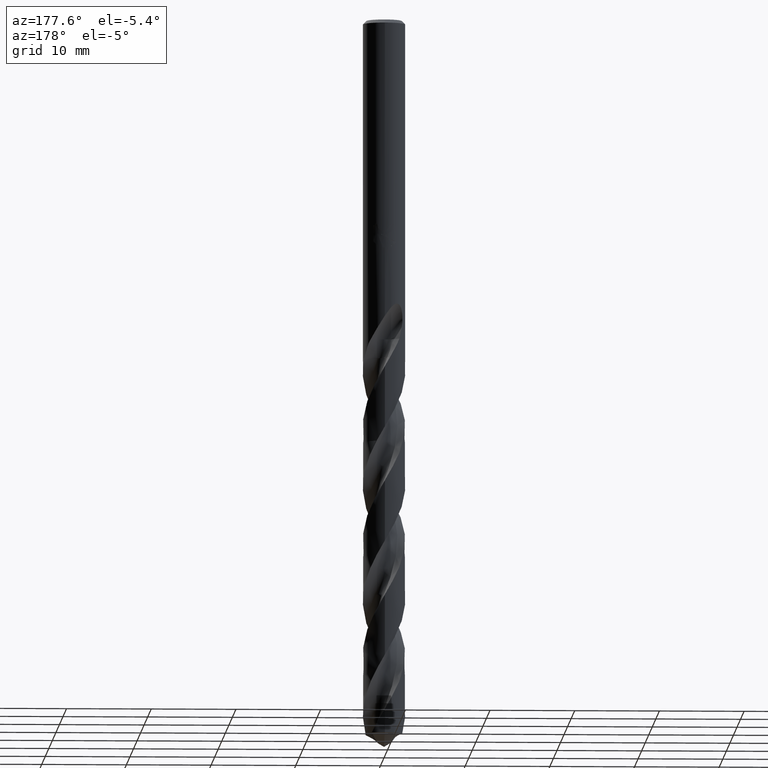
[diagram: clean part render]
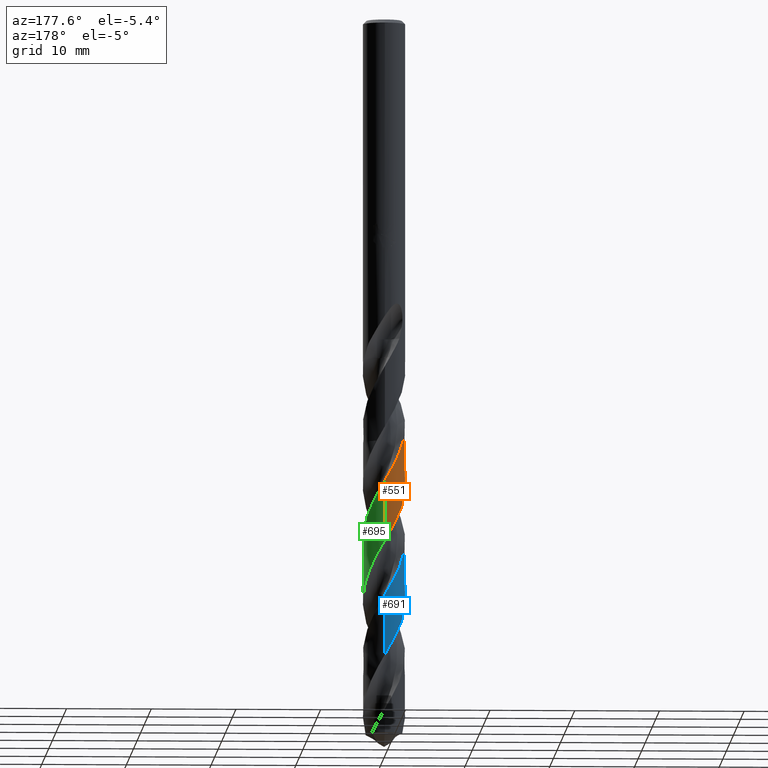
[diagram: same view with three faces highlighted in distinct colors, each labeled with its STEP entity id]
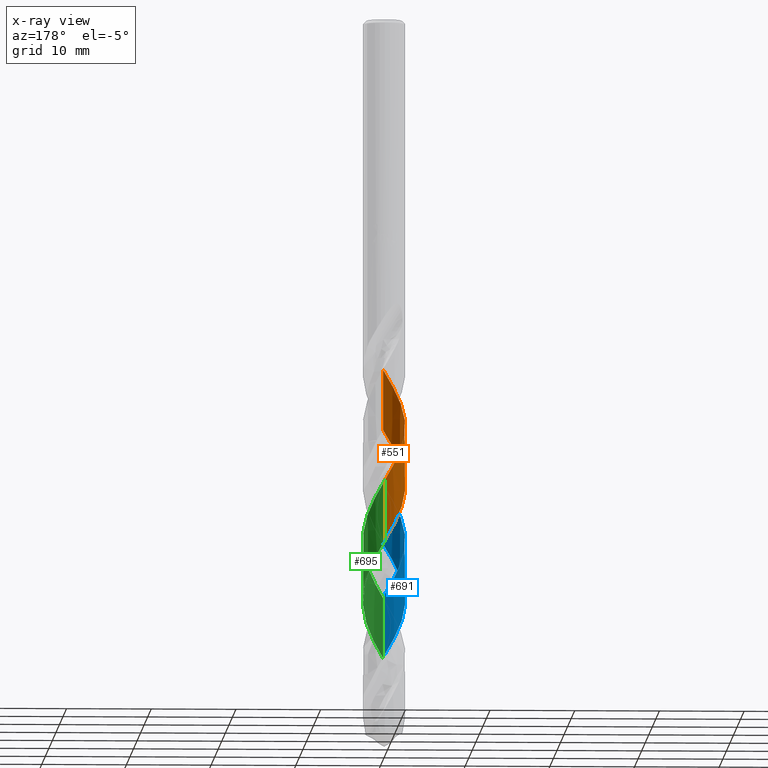
[diagram: x-ray of the same camera — body ghosted, the three highlighted faces saturated]
A machine part, auxiliary view with three faces highlighted in distinct colors.
The next image is the same camera in x-ray (body ghosted, the three faces saturated) — at least one of them is partly hidden behind the body in this view.
Their STEP definitions:

[orange] entity #551 — the highlighted conical surface has half-angle 0 deg.
#511=EDGE_CURVE('',#521,#645,#1073,.T.);
#521=VERTEX_POINT('',#1084);
#529=VERTEX_POINT('',#1093);
#541=EDGE_CURVE('',#645,#787,#1105,.T.);
#551=ADVANCED_FACE('',(#1115),#1116,.T.);
#645=VERTEX_POINT('',#1218);
#671=EDGE_CURVE('',#787,#529,#1244,.T.);
#755=EDGE_CURVE('',#529,#521,#1338,.T.);
#787=VERTEX_POINT('',#1372);
#1073=LINE('',#5789,#5790);
#1084=CARTESIAN_POINT('',(7.49775779177427E-013,-2.49991849177696,-48.2284428891601));
#1093=CARTESIAN_POINT('',(1.93293210574643E-009,2.49994888624179,-61.7533257850565));
#1105=B_SPLINE_CURVE_WITH_KNOTS('',3,(#5849,#5850,#5851,#5852,#5853,#5854,#5855,#5856,#5857,#5858,#5859,#5860,#5861,#5862,#5863,#5864,#5865,#5866,#5867,#5868,#5869,#5870,#5871,#5872,#5873,#5874,#5875,#5876,#5877,#5878,#5879,#5880,#5881,#5882,#5883,#5884,#5885,#5886,#5887,#5888,#5889,#5890,#5891,#5892,#5893,#5894,#5895,#5896,#5897,#5898,#5899,#5900,#5901,#5902,#5903,#5904,#5905,#5906,#5907,#5908,#5909,#5910,#5911,#5912,#5913,#5914,#5915,#5916,#5917,#5918,#5919,#5920,#5921,#5922,#5923,#5924,#5925,#5926,#5927,#5928,#5929,#5930,#5931,#5932,#5933,#5934,#5935,#5936,#5937,#5938,#5939,#5940,#5941,#5942,#5943,#5944,#5945,#5946,#5947,#5948,#5949,#5950,#5951,#5952,#5953,#5954,#5955,#5956,#5957,#5958,#5959,#5960,#5961,#5962,#5963,#5964,#5965,#5966,#5967,#5968,#5969,#5970,#5971,#5972,#5973,#5974,#5975,#5976,#5977,#5978,#5979,#5980,#5981,#5982,#5983,#5984,#5985,#5986,#5987,#5988,#5989,#5990,#5991,#5992,#5993,#5994,#5995,#5996,#5997,#5998,#5999,#6000),.UNSPECIFIED.,.F.,.F.,(4,2,2,2,2,2,2,2,2,2,2,2,2,2,2,2,2,2,2,2,2,2,2,2,2,2,2,2,2,2,2,2,2,2,2,2,2,2,2,2,2,2,2,2,2,2,2,2,2,2,2,2,2,2,2,2,2,2,2,2,2,2,2,2,2,2,2,2,2,2,2,2,2,2,2,4),(0.0,0.486468637205659,1.70143641228443,2.65078651556371,2.69801352807656,4.16182916539845,4.64297843482625,5.46628319013325,5.94827491671643,6.39877088951246,7.2452349083656,8.20441671320281,9.24810325309858,9.84779101742596,10.7331854300438,11.1672260344376,11.6253635205014,12.4724261974801,12.9064373972803,13.365326095412,14.2079548086289,15.167164260544,16.1997147164964,16.8178226143658,17.7068396053384,18.140601446097,18.594473016517,19.4452445024272,19.878983841379,20.3339119557433,21.1821044103471,22.1399289317482,23.1860164497523,23.7797694981045,24.6652458710148,25.6228613857516,26.6730879037276,27.2602448664424,28.1449336295283,28.578501826849,29.0356507875547,29.8793876935311,30.3129781186961,30.7736254975366,31.6147356714986,32.048322163168,32.511746710175,33.3521728259255,34.310511339114,35.3384254203687,35.96204701574,36.8504313694439,37.8066224498992,38.8631528107547,39.4383850291312,40.3219578972178,40.7552014930623,41.2125694869403,42.0580960960982,42.4913104596901,42.9496833130464,43.793179147003,44.2263766387619,44.6861272882223,45.5281025525777,46.9858631663966,47.5358344393069,48.4852455571852,49.2093118088113,50.2988937702121,50.8460679603494,51.120258945224,51.2572517241446,51.3256364851117,51.3597868174541,51.3939164880868),.UNSPECIFIED.);
#1115=FACE_OUTER_BOUND('',#6039,.T.);
#1116=CONICAL_SURFACE('',#6040,2.49995,2.2472996667905E-006);
#1218=CARTESIAN_POINT('',(-2.25444126634023E-013,-2.49990247498614,-41.1013155783713));
#1244=LINE('',#8575,#8576);
#1338=B_SPLINE_CURVE_WITH_KNOTS('',3,(#11158,#11159,#11160,#11161,#11162,#11163,#11164,#11165,#11166,#11167,#11168,#11169,#11170,#11171,#11172,#11173,#11174,#11175,#11176,#11177,#11178,#11179,#11180,#11181,#11182,#11183,#11184,#11185,#11186,#11187,#11188,#11189,#11190,#11191,#11192,#11193,#11194,#11195,#11196,#11197,#11198,#11199,#11200,#11201,#11202,#11203,#11204,#11205,#11206,#11207,#11208,#11209,#11210,#11211,#11212,#11213,#11214,#11215,#11216,#11217,#11218,#11219,#11220,#11221,#11222,#11223,#11224,#11225,#11226,#11227,#11228,#11229,#11230,#11231,#11232,#11233,#11234,#11235,#11236,#11237,#11238,#11239,#11240,#11241,#11242,#11243,#11244,#11245,#11246,#11247,#11248,#11249,#11250,#11251,#11252,#11253,#11254,#11255,#11256,#11257,#11258,#11259,#11260,#11261,#11262,#11263,#11264,#11265,#11266,#11267,#11268,#11269,#11270,#11271,#11272,#11273,#11274,#11275,#11276,#11277,#11278,#11279,#11280,#11281,#11282,#11283,#11284,#11285,#11286,#11287,#11288,#11289,#11290,#11291,#11292,#11293,#11294,#11295,#11296,#11297,#11298,#11299),.UNSPECIFIED.,.F.,.F.,(4,2,2,2,2,2,2,2,2,2,2,2,2,2,2,2,2,2,2,2,2,2,2,2,2,2,2,2,2,2,2,2,2,2,2,2,2,2,2,2,2,2,2,2,2,2,2,2,2,2,2,2,2,2,2,2,2,2,2,2,2,2,2,2,2,2,2,2,2,2,4),(0.0,0.886278392990134,1.32204168608435,2.18261664326031,3.04564370395588,3.80067059461583,4.53740035056587,5.01882581777993,5.37595032622277,6.43013206591807,7.22866469830102,8.65957156160223,8.85817479758621,9.89358465054521,10.7988532869425,11.5386437890194,11.9762295956819,12.7367552003956,13.6036792088966,14.4616483482586,15.3279048185633,16.1880553603282,17.0538426357121,17.488963389255,17.5551518693274,19.187686928308,19.3502184185733,20.372372509029,20.8054814901363,21.1433662643557,22.192403467487,23.0530888341666,23.9052028819446,24.7678786674932,25.5839327053124,26.0034158488695,26.3495649935091,27.4014588778916,28.1913417822223,29.6473237969438,29.7168776992087,30.754414896589,31.2292816728727,31.5816018632148,32.6319060144131,33.4274958473806,34.8679289978624,35.0597702640648,36.1002934238635,36.9963758875166,37.8127290278321,38.2376268294924,38.5868849836734,39.6519802673248,40.5199963048351,41.3729273516226,42.2431728642578,43.0074654064831,43.4455895869971,44.1857307690151,45.053814424272,45.8608030823382,46.5758274387533,46.8907979830468,47.4750985454959,48.5074653239573,49.2845076563142,50.4535732717912,51.0374889365494,51.332678916991,51.6278332694661),.UNSPECIFIED.);
#1372=CARTESIAN_POINT('',(-5.97038746605551E-016,2.49993286979034,-54.6263494913692));
#5789=CARTESIAN_POINT('',(3.06389759560313E-016,-2.49995,-62.2489242262156));
#5790=VECTOR('',#13099,1.0);
#5849=CARTESIAN_POINT('',(0.63023927417457,-2.41915243802108,-40.0045474541089));
#5850=CARTESIAN_POINT('',(0.551399159961684,-2.43969224495614,-40.14475084188));
#5851=CARTESIAN_POINT('',(0.471584726215799,-2.45637022987312,-40.2847910390962));
#5852=CARTESIAN_POINT('',(0.190016485841626,-2.50096843403933,-40.7751877348511));
#5853=CARTESIAN_POINT('',(-0.0140317145013403,-2.50811246414122,-41.1247744082103));
#5854=CARTESIAN_POINT('',(-0.374744383561304,-2.4767538626434,-41.7488575215678));
#5855=CARTESIAN_POINT('',(-0.531400300454792,-2.44794390539751,-42.0217327359614));
#5856=CARTESIAN_POINT('',(-0.691971968673954,-2.40224131618718,-42.3089445319066));
#5857=CARTESIAN_POINT('',(-0.699569909542848,-2.40003971571571,-42.3225538072412));
#5858=CARTESIAN_POINT('',(-0.942356929850779,-2.32843815028442,-42.7581107461923));
#5859=CARTESIAN_POINT('',(-1.16611997522422,-2.22482201011015,-43.1787331290915));
#5860=CARTESIAN_POINT('',(-1.43856095360426,-2.04611368679078,-43.739511093452));
#5861=CARTESIAN_POINT('',(-1.50375152755506,-1.99869016477058,-43.8780944923187));
#5862=CARTESIAN_POINT('',(-1.67392845575327,-1.86185557076079,-44.2543260410339));
#5863=CARTESIAN_POINT('',(-1.77403720257583,-1.76673561200314,-44.4915809876875));
#5864=CARTESIAN_POINT('',(-1.91953298776288,-1.60357848848554,-44.8680212252548));
#5865=CARTESIAN_POINT('',(-1.97032148143572,-1.5407504398965,-45.0069024608171));
#5866=CARTESIAN_POINT('',(-2.06254482885601,-1.4146257269884,-45.2757809540807));
#5867=CARTESIAN_POINT('',(-2.10429706700117,-1.35173375434415,-45.4055592500577));
#5868=CARTESIAN_POINT('',(-2.21610031849606,-1.16556904881058,-45.7796630826873));
#5869=CARTESIAN_POINT('',(-2.27862168283373,-1.0380533219699,-46.0235915854911));
#5870=CARTESIAN_POINT('',(-2.3882249983064,-0.756154306176223,-46.5443837713302));
#5871=CARTESIAN_POINT('',(-2.43186032618212,-0.601184418193876,-46.8199811434991));
#5872=CARTESIAN_POINT('',(-2.49130335919881,-0.271156714690888,-47.3977765336848));
#5873=CARTESIAN_POINT('',(-2.50417537122244,-0.0963279952251409,-47.6982197391236));
#5874=CARTESIAN_POINT('',(-2.49553174160593,0.178917266253958,-48.1721965873275));
#5875=CARTESIAN_POINT('',(-2.48632602993001,0.279040151212175,-48.3448428689166));
#5876=CARTESIAN_POINT('',(-2.44868865264733,0.524890387792521,-48.7732847998357));
#5877=CARTESIAN_POINT('',(-2.41324705442217,0.669212239860789,-49.0284699400836));
#5878=CARTESIAN_POINT('',(-2.34166096491422,0.878360884920476,-49.4091020070278));
#5879=CARTESIAN_POINT('',(-2.31511672937744,0.946115214320303,-49.5342245070372));
#5880=CARTESIAN_POINT('',(-2.25454574701492,1.08283414355419,-49.7915653744762));
#5881=CARTESIAN_POINT('',(-2.22023799763403,1.1515391921493,-49.9235862701155));
#5882=CARTESIAN_POINT('',(-2.11368486334522,1.34241556341654,-50.3001896630618));
#5883=CARTESIAN_POINT('',(-2.03409508490684,1.46021278242989,-50.5443660733219));
#5884=CARTESIAN_POINT('',(-1.89923081579418,1.62721654961593,-50.913975206333));
#5885=CARTESIAN_POINT('',(-1.85108470851523,1.68178546562946,-51.0391040146947));
#5886=CARTESIAN_POINT('',(-1.74725634725903,1.78959192830133,-51.2966833503941));
#5887=CARTESIAN_POINT('',(-1.69139055465751,1.84248064689944,-51.4289346947159));
#5888=CARTESIAN_POINT('',(-1.52633334597709,1.98490838909519,-51.8045203367325));
#5889=CARTESIAN_POINT('',(-1.41182759521533,2.06792595915809,-52.0474538732452));
#5890=CARTESIAN_POINT('',(-1.15324841885172,2.22384755647403,-52.5673762881366));
#5891=CARTESIAN_POINT('',(-1.00794722539404,2.29336051448927,-52.8430931799613));
#5892=CARTESIAN_POINT('',(-0.694534008567055,2.40773496991129,-53.4179332209462));
#5893=CARTESIAN_POINT('',(-0.526270104493439,2.45003207139287,-53.7153265046415));
#5894=CARTESIAN_POINT('',(-0.252353394923137,2.48932009422073,-54.1916165525459));
#5895=CARTESIAN_POINT('',(-0.14900313310003,2.49763583314589,-54.3696286408948));
#5896=CARTESIAN_POINT('',(0.103470604501137,2.50222843629095,-54.8046218844061));
#5897=CARTESIAN_POINT('',(0.252379803112171,2.49162175910156,-55.0609574583934));
#5898=CARTESIAN_POINT('',(0.471251258865402,2.45619256746932,-55.4427203984455));
#5899=CARTESIAN_POINT('',(0.542495455274487,2.44144707642524,-55.5678167490976));
#5900=CARTESIAN_POINT('',(0.686791266888688,2.40495065894258,-55.823958924539));
#5901=CARTESIAN_POINT('',(0.759650841521,2.3829380048545,-55.9548121675991));
#5902=CARTESIAN_POINT('',(0.965813700553425,2.31024007728766,-56.3314201274665));
#5903=CARTESIAN_POINT('',(1.09598876324218,2.25140748419148,-56.5767675128888));
#5904=CARTESIAN_POINT('',(1.28391668799822,2.14628405551235,-56.9475291157809));
#5905=CARTESIAN_POINT('',(1.34580722556575,2.10802886760496,-57.072633582986));
#5906=CARTESIAN_POINT('',(1.4690368677035,2.02421489123339,-57.3291038049777));
#5907=CARTESIAN_POINT('',(1.53009621865221,1.97846248560547,-57.4602753746949));
#5908=CARTESIAN_POINT('',(1.69868831090351,1.83966361638247,-57.8364874522486));
#5909=CARTESIAN_POINT('',(1.80054707679133,1.74010219384417,-58.0811228555829));
#5910=CARTESIAN_POINT('',(1.99826259069744,1.51077574266519,-58.602474267959));
#5911=CARTESIAN_POINT('',(2.09112939215022,1.37936708436662,-58.8779193397861));
#5912=CARTESIAN_POINT('',(2.25769598068665,1.08777663886304,-59.456520077426));
#5913=CARTESIAN_POINT('',(2.3284347403731,0.926766388953405,-59.7579095377373));
#5914=CARTESIAN_POINT('',(2.41200489362428,0.66473801789684,-60.2312799774648));
#5915=CARTESIAN_POINT('',(2.43655757521842,0.568174206313031,-60.4023723798153));
#5916=CARTESIAN_POINT('',(2.48321675002629,0.324651842246697,-60.8295000848232));
#5917=CARTESIAN_POINT('',(2.49811557457052,0.176644714944267,-61.0849311994412));
#5918=CARTESIAN_POINT('',(2.50159928378752,-0.132403043713693,-61.6170939701187));
#5919=CARTESIAN_POINT('',(2.4879344233985,-0.292730391105685,-61.8925367302413));
#5920=CARTESIAN_POINT('',(2.42727551789917,-0.623757039597442,-62.4723892125293));
#5921=CARTESIAN_POINT('',(2.37733260797339,-0.793148887217868,-62.7750217174326));
#5922=CARTESIAN_POINT('',(2.27230088629503,-1.04695359946303,-63.247776199575));
#5923=CARTESIAN_POINT('',(2.22930531500784,-1.13562833224026,-63.417007050146));
#5924=CARTESIAN_POINT('',(2.10873164112855,-1.3509327084023,-63.8420867634208));
#5925=CARTESIAN_POINT('',(2.02486629927563,-1.4736706478305,-64.097341960624));
#5926=CARTESIAN_POINT('',(1.88439564230523,-1.64441975903183,-64.4780428096076));
#5927=CARTESIAN_POINT('',(1.83575837460925,-1.69854643880873,-64.6031633948089));
#5928=CARTESIAN_POINT('',(1.73111026088509,-1.80524798916653,-64.8603590646547));
#5929=CARTESIAN_POINT('',(1.6749327554697,-1.8574865426407,-64.992236673316));
#5930=CARTESIAN_POINT('',(1.50854581099421,-1.99852142399512,-65.3679994165466));
#5931=CARTESIAN_POINT('',(1.39303212566252,-2.0806922716036,-65.6114825030129));
#5932=CARTESIAN_POINT('',(1.20853558982676,-2.18964005637852,-65.9804086654066));
#5933=CARTESIAN_POINT('',(1.14431177966045,-2.22387904441494,-66.1055513003008));
#5934=CARTESIAN_POINT('',(1.00893764735457,-2.2886276503876,-66.3637948026258));
#5935=CARTESIAN_POINT('',(0.937723659213122,-2.31871492913906,-66.4966941186478));
#5936=CARTESIAN_POINT('',(0.732925181535382,-2.3942673735221,-66.8727540547436));
#5937=CARTESIAN_POINT('',(0.596670845971635,-2.43180992015328,-67.115512391682));
#5938=CARTESIAN_POINT('',(0.386444383968251,-2.47098372043089,-67.4837244319647));
#5939=CARTESIAN_POINT('',(0.314374536433909,-2.48118401774517,-67.6088816413948));
#5940=CARTESIAN_POINT('',(0.164536647146554,-2.49575438771433,-67.867957638562));
#5941=CARTESIAN_POINT('',(0.0868500316138516,-2.49966241983384,-68.001671869364));
#5942=CARTESIAN_POINT('',(-0.131816503987645,-2.50046184526096,-68.3783816450605));
#5943=CARTESIAN_POINT('',(-0.272589028748422,-2.48905608638307,-68.6209725644065));
#5944=CARTESIAN_POINT('',(-0.57026964785563,-2.43935935093655,-69.1406306629626));
#5945=CARTESIAN_POINT('',(-0.725899988031532,-2.39765125164813,-69.4164254960133));
#5946=CARTESIAN_POINT('',(-1.03787326520919,-2.28087149788918,-69.9903607028576));
#5947=CARTESIAN_POINT('',(-1.19271072403101,-2.20387122854121,-70.2867803717403));
#5948=CARTESIAN_POINT('',(-1.42684031083477,-2.05546313072055,-70.7638938907659));
#5949=CARTESIAN_POINT('',(-1.51161039033216,-1.9939472851141,-70.9437028853568));
#5950=CARTESIAN_POINT('',(-1.70715294493416,-1.83240030196252,-71.3806259792815));
#5951=CARTESIAN_POINT('',(-1.81335518993627,-1.72737554180608,-71.6370839899216));
#5952=CARTESIAN_POINT('',(-2.01314735053127,-1.49092241525074,-72.1700765300712));
#5953=CARTESIAN_POINT('',(-2.10464387287574,-1.35869947743482,-72.4453220174977));
#5954=CARTESIAN_POINT('',(-2.26922102580631,-1.06391491437253,-73.0270267239073));
#5955=CARTESIAN_POINT('',(-2.33895230903406,-0.900354712069408,-73.3316892842329));
#5956=CARTESIAN_POINT('',(-2.41902643619649,-0.638370747796113,-73.8031777191218));
#5957=CARTESIAN_POINT('',(-2.44186927725548,-0.544491929965314,-73.9691072298079));
#5958=CARTESIAN_POINT('',(-2.48588459611924,-0.303714740341474,-74.3907427847977));
#5959=CARTESIAN_POINT('',(-2.49952457358333,-0.155762883871216,-74.6458718522745));
#5960=CARTESIAN_POINT('',(-2.50018441623188,0.0652672693479605,-75.0264476510596));
#5961=CARTESIAN_POINT('',(-2.49722844019774,0.137976821246924,-75.1515702581429));
#5962=CARTESIAN_POINT('',(-2.48463869407466,0.286996088671524,-75.4089320396397));
#5963=CARTESIAN_POINT('',(-2.47465345109559,0.363152098543516,-75.5409736620545));
#5964=CARTESIAN_POINT('',(-2.436289675047,0.578381576348571,-75.9176038820578));
#5965=CARTESIAN_POINT('',(-2.39954131339841,0.715719972064627,-76.1617864956334));
#5966=CARTESIAN_POINT('',(-2.3266220082302,0.917621620268797,-76.5314016841996));
#5967=CARTESIAN_POINT('',(-2.29894059603712,0.984924933423243,-76.6565306859548));
#5968=CARTESIAN_POINT('',(-2.2359968759933,1.12078476459019,-76.9142046206113));
#5969=CARTESIAN_POINT('',(-2.20044255183174,1.18906940543646,-77.046550580388));
#5970=CARTESIAN_POINT('',(-2.09071558691301,1.37799360628996,-77.4229281035671));
#5971=CARTESIAN_POINT('',(-2.00933577417888,1.49417150329276,-77.6665550453965));
#5972=CARTESIAN_POINT('',(-1.87190807286213,1.65866734319387,-78.0356219766295));
#5973=CARTESIAN_POINT('',(-1.82285462261161,1.71243213838426,-78.1607609644946));
#5974=CARTESIAN_POINT('',(-1.7170292684455,1.81870973112712,-78.4188584427427));
#5975=CARTESIAN_POINT('',(-1.66006113201648,1.87085129123842,-78.5516155935741));
#5976=CARTESIAN_POINT('',(-1.49224455036476,2.01074961720379,-78.9279963702924));
#5977=CARTESIAN_POINT('',(-1.3761941034369,2.09189329701951,-79.1712161119976));
#5978=CARTESIAN_POINT('',(-1.04212435262395,2.28557200272435,-79.8361071790207));
#5979=CARTESIAN_POINT('',(-0.813504659738974,2.37655918058732,-80.2551886278359));
#5980=CARTESIAN_POINT('',(-0.485553651125645,2.45412268775418,-80.8357253709578));
#5981=CARTESIAN_POINT('',(-0.39458071816252,2.47038462275969,-80.9945970666482));
#5982=CARTESIAN_POINT('',(-0.144589586789465,2.50089781601546,-81.4280401918773));
#5983=CARTESIAN_POINT('',(0.0151167217388537,2.50501944193184,-81.7018145922558));
#5984=CARTESIAN_POINT('',(0.295257549123687,2.48546980852061,-82.185755922971));
#5985=CARTESIAN_POINT('',(0.415737332332722,2.46818269534114,-82.3948765796481));
#5986=CARTESIAN_POINT('',(0.713283122092211,2.40305927002728,-82.9192131723193));
#5987=CARTESIAN_POINT('',(0.887171560613357,2.34443348809209,-83.2332529057071));
#5988=CARTESIAN_POINT('',(1.1363714467765,2.22869656355052,-83.7065195111907));
#5989=CARTESIAN_POINT('',(1.21751147352496,2.18543067255621,-83.8645969304776));
#5990=CARTESIAN_POINT('',(1.33549597280791,2.1138986554944,-84.1020401817815));
#5991=CARTESIAN_POINT('',(1.37421730767917,2.08893401258426,-84.1812795370729));
#5992=CARTESIAN_POINT('',(1.43122126868187,2.04991053038287,-84.3001400512296));
#5993=CARTESIAN_POINT('',(1.45003212595502,2.0366479131867,-84.3397375623819));
#5994=CARTESIAN_POINT('',(1.47795374374531,2.01637883516352,-84.3991069576202));
#5995=CARTESIAN_POINT('',(1.48720388364764,2.00956604472597,-84.418875046139));
#5996=CARTESIAN_POINT('',(1.50100203562564,1.99925617302772,-84.4485160021217));
#5997=CARTESIAN_POINT('',(1.50558571055292,1.99580663704535,-84.4583882383302));
#5998=CARTESIAN_POINT('',(1.51472626076906,1.98887832740437,-84.4781269968799));
#5999=CARTESIAN_POINT('',(1.51928135173155,1.98540093589974,-84.487989578672));
#6000=CARTESIAN_POINT('',(1.52382250889803,1.98190942310079,-84.4978484524311));
#6039=EDGE_LOOP('',(#13118,#13119,#13120,#13121));
#6040=AXIS2_PLACEMENT_3D('',#13122,#13123,#13124);
#8575=CARTESIAN_POINT('',(-3.05901171287337E-016,2.49995,-62.2489242262156));
#8576=VECTOR('',#13215,1.0);
#11158=CARTESIAN_POINT('',(-2.10422651157214,1.34990028816833,-84.4978484524311));
#11159=CARTESIAN_POINT('',(-2.18391051900309,1.22568767756884,-84.2419221247438));
#11160=CARTESIAN_POINT('',(-2.252677527884,1.09430014159775,-83.9875843090841));
#11161=CARTESIAN_POINT('',(-2.33748630792873,0.889651265414245,-83.6067592875566));
#11162=CARTESIAN_POINT('',(-2.36246314517356,0.821024577012156,-83.4814096967746));
#11163=CARTESIAN_POINT('',(-2.42771079060993,0.613980715266563,-83.1079151522613));
#11164=CARTESIAN_POINT('',(-2.45903468055017,0.473166540072573,-82.8590383284668));
#11165=CARTESIAN_POINT('',(-2.49716404384125,0.187143655885062,-82.3624378988971));
#11166=CARTESIAN_POINT('',(-2.50380559078085,0.0425442743033106,-82.115147783928));
#11167=CARTESIAN_POINT('',(-2.49276955126664,-0.228141303839346,-81.6490463295475));
#11168=CARTESIAN_POINT('',(-2.47806147168876,-0.353680977577102,-81.430661439266));
#11169=CARTESIAN_POINT('',(-2.43045502999355,-0.598331409784647,-81.0010353837789));
#11170=CARTESIAN_POINT('',(-2.39802778223436,-0.717386053515937,-80.7897585073854));
#11171=CARTESIAN_POINT('',(-2.32999765851553,-0.90970608583893,-80.4392541366082));
#11172=CARTESIAN_POINT('',(-2.29948722869155,-0.984264079787256,-80.3009224504768));
#11173=CARTESIAN_POINT('',(-2.24026878574673,-1.11117196390121,-80.0594204793932));
#11174=CARTESIAN_POINT('',(-2.213167651963,-1.1642073017191,-79.9563545263131));
#11175=CARTESIAN_POINT('',(-2.09877028555366,-1.36965680194334,-79.5502761666427));
#11176=CARTESIAN_POINT('',(-1.99727489886881,-1.51389349541006,-79.2494764762246));
#11177=CARTESIAN_POINT('',(-1.79335104256779,-1.74689361462812,-78.7171507757342));
#11178=CARTESIAN_POINT('',(-1.69768097558766,-1.83997033577096,-78.4869120124649));
#11179=CARTESIAN_POINT('',(-1.41186530339407,-2.07685549619693,-77.8466083533054));
#11180=CARTESIAN_POINT('',(-1.20782797116339,-2.20173657338893,-77.4417842905076));
#11181=CARTESIAN_POINT('',(-0.959082376887223,-2.30893184285237,-76.9737755171583));
#11182=CARTESIAN_POINT('',(-0.928542820691034,-2.32138223173487,-76.916694578149));
#11183=CARTESIAN_POINT('',(-0.736873139803268,-2.3951244177099,-76.5619560110457));
#11184=CARTESIAN_POINT('',(-0.569840245780003,-2.44030433285652,-76.2666964864251));
#11185=CARTESIAN_POINT('',(-0.249922689823462,-2.492045872693,-75.7096782187253));
#11186=CARTESIAN_POINT('',(-0.0990137460338281,-2.50256153270188,-75.4488938136031));
#11187=CARTESIAN_POINT('',(0.174835629405995,-2.49689772496044,-74.9767630185488));
#11188=CARTESIAN_POINT('',(0.29776239291996,-2.48525059106793,-74.7653404276965));
#11189=CARTESIAN_POINT('',(0.491462725069135,-2.45228140499202,-74.4277435134555));
#11190=CARTESIAN_POINT('',(0.562799895310504,-2.43689354024929,-74.3024107813202));
#11191=CARTESIAN_POINT('',(0.755780887041995,-2.3863595084372,-73.9586019145727));
#11192=CARTESIAN_POINT('',(0.875745688232134,-2.34500405419005,-73.7394105399627));
#11193=CARTESIAN_POINT('',(1.12493256471239,-2.23725603310617,-73.2722258518126));
#11194=CARTESIAN_POINT('',(1.25241470672275,-2.16846259023151,-73.0247484575468));
#11195=CARTESIAN_POINT('',(1.49278571590759,-2.01045474270347,-72.5296148414455));
#11196=CARTESIAN_POINT('',(1.60528257314614,-1.92182325254021,-72.282289245735));
#11197=CARTESIAN_POINT('',(1.81508209629788,-1.72516828542529,-71.7873411432425));
#11198=CARTESIAN_POINT('',(1.91171972181452,-1.61742228362989,-71.5400673035538));
#11199=CARTESIAN_POINT('',(2.08470063315061,-1.38724605937607,-71.0445765381367));
#11200=CARTESIAN_POINT('',(2.16077422922401,-1.26548986400792,-70.7966549280616));
#11201=CARTESIAN_POINT('',(2.29173199060145,-1.00927656435482,-70.3013010026724));
#11202=CARTESIAN_POINT('',(2.34617762434174,-0.875291752446674,-70.0542064758746));
#11203=CARTESIAN_POINT('',(2.41016323003706,-0.667991263709907,-69.680940369656));
#11204=CARTESIAN_POINT('',(2.42849153472781,-0.597899097825472,-69.5561936001088));
#11205=CARTESIAN_POINT('',(2.44605098634188,-0.516513216909179,-69.4121523121453));
#11206=CARTESIAN_POINT('',(2.44830798842161,-0.505708514135238,-69.3930648087535));
#11207=CARTESIAN_POINT('',(2.50460964636634,-0.226893718809418,-68.9013864288246));
#11208=CARTESIAN_POINT('',(2.51438527567601,0.047921911159083,-68.4381158017325));
#11209=CARTESIAN_POINT('',(2.47607901971076,0.345811969681123,-67.9189332273757));
#11210=CARTESIAN_POINT('',(2.47217306975323,0.37271569618469,-67.8718900871299));
#11211=CARTESIAN_POINT('',(2.44040130446507,0.568908350618748,-67.5285481481257));
#11212=CARTESIAN_POINT('',(2.39560537287983,0.735183284931472,-67.2346644624544));
#11213=CARTESIAN_POINT('',(2.30780985599951,0.963914820444815,-66.8135713896469));
#11214=CARTESIAN_POINT('',(2.27875321579664,1.03071299229601,-66.6883740265351));
#11215=CARTESIAN_POINT('',(2.22201131584787,1.14703094502361,-66.46505740074));
#11216=CARTESIAN_POINT('',(2.19545882738938,1.19706677899594,-66.3670069047228));
#11217=CARTESIAN_POINT('',(2.07949234960505,1.39873703286315,-65.9653886515186));
#11218=CARTESIAN_POINT('',(1.97581829464792,1.54177169184462,-65.6641537798309));
#11219=CARTESIAN_POINT('',(1.76088663222546,1.78045360391262,-65.1118672958536));
#11220=CARTESIAN_POINT('',(1.65500198818701,1.87925778682486,-64.8619526583561));
#11221=CARTESIAN_POINT('',(1.42869275847984,2.05646769909544,-64.3666464041242));
#11222=CARTESIAN_POINT('',(1.30866920742302,2.13486980978589,-64.1216074188359));
#11223=CARTESIAN_POINT('',(1.0547258686855,2.27119872213977,-63.6260869391802));
#11224=CARTESIAN_POINT('',(0.921430692237337,2.32844220539274,-63.3758342377953));
#11225=CARTESIAN_POINT('',(0.654206956299581,2.41670972524801,-62.8907823211723));
#11226=CARTESIAN_POINT('',(0.52088578397732,2.44892262628485,-62.65620383026));
#11227=CARTESIAN_POINT('',(0.315831079742434,2.48092042197681,-62.2995111565081));
#11228=CARTESIAN_POINT('',(0.245880112938418,2.4888209245857,-62.1785222964509));
#11229=CARTESIAN_POINT('',(0.117948093153121,2.49783845896696,-61.9572809658584));
#11230=CARTESIAN_POINT('',(0.0600815671038602,2.4998976901375,-61.8570602236937));
#11231=CARTESIAN_POINT('',(-0.173776113812252,2.50010066044114,-61.4532904686481));
#11232=CARTESIAN_POINT('',(-0.349474907860109,2.48168103680088,-61.152031278009));
#11233=CARTESIAN_POINT('',(-0.651618393524941,2.41716400498301,-60.6208256894603));
#11234=CARTESIAN_POINT('',(-0.778600987824094,2.37927437374619,-60.3921813584039));
#11235=CARTESIAN_POINT('',(-1.12877698561757,2.24384267785878,-59.7446599470541));
#11236=CARTESIAN_POINT('',(-1.34153144629008,2.12343527831409,-59.3312303383691));
#11237=CARTESIAN_POINT('',(-1.54248470949246,1.96738094001302,-58.8912837695788));
#11238=CARTESIAN_POINT('',(-1.551582527488,1.96021382124798,-58.8712411449911));
#11239=CARTESIAN_POINT('',(-1.6957979180537,1.8449687680032,-58.5520031146652));
#11240=CARTESIAN_POINT('',(-1.81965108777344,1.7230128733611,-58.2552283312348));
#11241=CARTESIAN_POINT('',(-1.98064368467309,1.52744122058987,-57.8199546462261));
#11242=CARTESIAN_POINT('',(-2.02816178171267,1.46374473255905,-57.6834652416797));
#11243=CARTESIAN_POINT('',(-2.10541842145231,1.34921155462521,-57.4451706168055));
#11244=CARTESIAN_POINT('',(-2.13653700391276,1.29936701131343,-57.3434700787059));
#11245=CARTESIAN_POINT('',(-2.25331725093003,1.09677385309144,-56.939690669476));
#11246=CARTESIAN_POINT('',(-2.32470074822334,0.936106566353564,-56.6398385125981));
#11247=CARTESIAN_POINT('',(-2.41964247373074,0.642423543181786,-56.1091920489651));
#11248=CARTESIAN_POINT('',(-2.45032986937473,0.512963390961479,-55.8796716213362));
#11249=CARTESIAN_POINT('',(-2.50724867377128,0.144802901773142,-55.2371259211359));
#11250=CARTESIAN_POINT('',(-2.50954098783979,-0.096134112553687,-54.8294640112822));
#11251=CARTESIAN_POINT('',(-2.47332944751341,-0.3651307185008,-54.3603706768571));
#11252=CARTESIAN_POINT('',(-2.46847265550641,-0.396643003911556,-54.3051920468805));
#11253=CARTESIAN_POINT('',(-2.43329798807289,-0.598989604622125,-53.9504521815196));
#11254=CARTESIAN_POINT('',(-2.3858639443032,-0.76653515410372,-53.6533672070077));
#11255=CARTESIAN_POINT('',(-2.26564996926153,-1.06720495059083,-53.0967507915148));
#11256=CARTESIAN_POINT('',(-2.19770903544469,-1.20085090325525,-52.8382325607284));
#11257=CARTESIAN_POINT('',(-2.04609323904771,-1.44279903017675,-52.3460840469817));
#11258=CARTESIAN_POINT('',(-1.96444971163997,-1.55215205021446,-52.1126622105604));
#11259=CARTESIAN_POINT('',(-1.82720871198177,-1.70762405163112,-51.7562376897881));
#11260=CARTESIAN_POINT('',(-1.77804836156962,-1.7587457128104,-51.6343457172707));
#11261=CARTESIAN_POINT('',(-1.68478186414889,-1.84784320069532,-51.4118392058517));
#11262=CARTESIAN_POINT('',(-1.64138731368674,-1.88649161391621,-51.311257949122));
#11263=CARTESIAN_POINT('',(-1.46034078159854,-2.0367676634919,-50.9049903853897));
#11264=CARTESIAN_POINT('',(-1.31218980078453,-2.13526360646051,-50.6016382238099));
#11265=CARTESIAN_POINT('',(-1.02614449095127,-2.28420896519399,-50.0471165251048));
#11266=CARTESIAN_POINT('',(-0.892319578837333,-2.33971162581538,-49.7971246640483));
#11267=CARTESIAN_POINT('',(-0.619229504675892,-2.426172861405,-49.3034960141672));
#11268=CARTESIAN_POINT('',(-0.480377350527092,-2.45745015074196,-49.0601916287705));
#11269=CARTESIAN_POINT('',(-0.19574494777066,-2.49646376823227,-48.5662941631871));
#11270=CARTESIAN_POINT('',(-0.0507612555953547,-2.50358743100644,-48.3159156346036));
#11271=CARTESIAN_POINT('',(0.220798731719972,-2.49338773625382,-47.8474820253833));
#11272=CARTESIAN_POINT('',(0.347362739314253,-2.47894014967815,-47.6294287429446));
#11273=CARTESIAN_POINT('',(0.544113278760813,-2.44107607338865,-47.2851506969793));
#11274=CARTESIAN_POINT('',(0.615077172712349,-2.42416260863258,-47.1598426737277));
#11275=CARTESIAN_POINT('',(0.803435911071962,-2.37048599242584,-46.8222011474744));
#11276=CARTESIAN_POINT('',(0.91922723259938,-2.32804646363336,-46.60917458447));
#11277=CARTESIAN_POINT('',(1.16328395782359,-2.21748851085846,-46.1480914932658));
#11278=CARTESIAN_POINT('',(1.28956633037012,-2.14650592546719,-45.9005926596799));
#11279=CARTESIAN_POINT('',(1.52001342933652,-1.98926722546053,-45.4203642180369));
#11280=CARTESIAN_POINT('',(1.62462955589698,-1.90478056801322,-45.1880330933296));
#11281=CARTESIAN_POINT('',(1.8083255126705,-1.73022663162695,-44.7516911190497));
#11282=CARTESIAN_POINT('',(1.88871062994866,-1.64211260183547,-44.5475105054248));
#11283=CARTESIAN_POINT('',(1.99507890549384,-1.50730401952672,-44.2523938121174));
#11284=CARTESIAN_POINT('',(2.02627025970363,-1.4651017912397,-44.1621912321141));
#11285=CARTESIAN_POINT('',(2.11139797939806,-1.34201272470157,-43.9043746588744));
#11286=CARTESIAN_POINT('',(2.16191718675857,-1.25900279040969,-43.7362799827545));
#11287=CARTESIAN_POINT('',(2.28802630669095,-1.02172228889719,-43.2728941182276));
#11288=CARTESIAN_POINT('',(2.35279604961156,-0.862216639087429,-42.9792680840275));
#11289=CARTESIAN_POINT('',(2.43679532262167,-0.57296392246958,-42.461060135931));
#11290=CARTESIAN_POINT('',(2.46313774933554,-0.446286680206723,-42.237633515341));
#11291=CARTESIAN_POINT('',(2.50431665116137,-0.125319826838911,-41.6803324080407));
#11292=CARTESIAN_POINT('',(2.50645683840412,0.0695724334138242,-41.3490658047814));
#11293=CARTESIAN_POINT('',(2.47589973823172,0.358919081124069,-40.8469450882297));
#11294=CARTESIAN_POINT('',(2.46015254207874,0.454489229472373,-40.6789386816867));
#11295=CARTESIAN_POINT('',(2.42808527024133,0.596917000525894,-40.4270847749132));
#11296=CARTESIAN_POINT('',(2.41589545797875,0.64449386077791,-40.3425873312556));
#11297=CARTESIAN_POINT('',(2.38867528713225,0.739020358974018,-40.1736526651882));
#11298=CARTESIAN_POINT('',(2.37365860090812,0.785925478498543,-40.0893101388365));
#11299=CARTESIAN_POINT('',(2.35723366210569,0.832435900024549,-40.0049317940782));
#13099=DIRECTION('',(-2.75205745089224E-022,2.24729966678861E-006,0.999999999997475));
#13118=ORIENTED_EDGE('',*,*,#671,.T.);
#13119=ORIENTED_EDGE('',*,*,#755,.T.);
#13120=ORIENTED_EDGE('',*,*,#511,.T.);
#13121=ORIENTED_EDGE('',*,*,#541,.T.);
#13122=CARTESIAN_POINT('',(0.0,0.0,-62.2489242262156));
#13123=DIRECTION('',(0.0,-0.0,-1.0));
#13124=DIRECTION('',(0.0,1.0,0.0));
#13215=DIRECTION('',(-2.75205745089224E-022,2.24729966678861E-006,-0.999999999997475));

[blue] entity #691 — the highlighted conical surface has half-angle 0 deg.
#319=VERTEX_POINT('',#863);
#419=VERTEX_POINT('',#973);
#465=EDGE_CURVE('',#419,#507,#1025,.T.);
#507=VERTEX_POINT('',#1069);
#625=VERTEX_POINT('',#1197);
#659=EDGE_CURVE('',#507,#319,#1232,.T.);
#691=ADVANCED_FACE('',(#1266),#1267,.T.);
#723=EDGE_CURVE('',#319,#625,#1304,.T.);
#807=EDGE_CURVE('',#625,#419,#1394,.T.);
#863=CARTESIAN_POINT('',(5.03804079495512E-015,-2.49994888624177,-61.7533257783822));
#973=CARTESIAN_POINT('',(1.45018572022454E-014,2.4999632643932,-68.1512938121225));
#1025=LINE('',#5398,#5399);
#1069=CARTESIAN_POINT('',(-9.38264786881069E-012,2.4999792807424,-75.2782246070999));
#1197=CARTESIAN_POINT('',(-2.51147675318835E-015,-2.49993286979034,-54.6263494913692));
#1232=B_SPLINE_CURVE_WITH_KNOTS('',3,(#8091,#8092,#8093,#8094,#8095,#8096,#8097,#8098,#8099,#8100,#8101,#8102,#8103,#8104,#8105,#8106,#8107,#8108,#8109,#8110,#8111,#8112,#8113,#8114,#8115,#8116,#8117,#8118,#8119,#8120,#8121,#8122,#8123,#8124,#8125,#8126,#8127,#8128,#8129,#8130,#8131,#8132,#8133,#8134,#8135,#8136,#8137,#8138,#8139,#8140,#8141,#8142,#8143,#8144,#8145,#8146,#8147,#8148,#8149,#8150,#8151,#8152,#8153,#8154,#8155,#8156,#8157,#8158,#8159,#8160,#8161,#8162,#8163,#8164,#8165,#8166,#8167,#8168,#8169,#8170,#8171,#8172,#8173,#8174,#8175,#8176,#8177,#8178,#8179,#8180,#8181,#8182,#8183,#8184,#8185,#8186,#8187,#8188,#8189,#8190,#8191,#8192,#8193,#8194,#8195,#8196,#8197,#8198,#8199,#8200,#8201,#8202,#8203,#8204,#8205,#8206,#8207,#8208,#8209,#8210,#8211,#8212,#8213,#8214,#8215,#8216,#8217,#8218,#8219,#8220,#8221,#8222,#8223,#8224,#8225,#8226),.UNSPECIFIED.,.F.,.F.,(4,2,2,2,2,2,2,2,2,2,2,2,2,2,2,2,2,2,2,2,2,2,2,2,2,2,2,2,2,2,2,2,2,2,2,2,2,2,2,2,2,2,2,2,2,2,2,2,2,2,2,2,2,2,2,2,2,2,2,2,2,2,2,2,2,2,2,4),(0.0,0.886278397502903,1.32204169081257,2.18261664768507,3.04564370924408,3.80067059385453,4.53740041843498,5.01882588522134,5.37595036216083,6.24753012270079,6.68454403379869,7.54949154603431,8.41662492948235,9.23094094188893,10.0961326171289,10.951689009208,11.8162372038535,12.6738937643971,13.5379177555576,13.7540155512641,14.1122955819952,15.1661539040639,15.9652027910226,17.3983803228625,17.5965043179049,18.6329727992461,19.5041789576085,20.2656021995581,20.7036880004422,21.4789212415568,22.3468193610702,23.2057336438044,24.0729812520681,24.9340639387408,25.8008463293681,26.0177443173258,26.3804507561341,27.4526493470725,28.3235518769154,29.1625995744247,30.0364332642347,30.8079968926417,31.2475015125573,32.0108554049893,32.9705032910956,33.7728988423531,34.7323263784511,35.5291373155555,36.4881615031319,37.2855822175094,38.2442224838434,39.041615613592,39.9998435952577,40.7986928953968,41.756630720244,42.5523771381615,43.5098686209551,44.3064010584098,45.2636768558014,46.0598679420862,46.7659862267717,48.0015628490625,48.9342486415985,49.2817436475925,50.5073788189186,51.1202425278104,51.4296801553101,51.7391160032014),.UNSPECIFIED.);
#1266=FACE_OUTER_BOUND('',#9415,.T.);
#1267=CONICAL_SURFACE('',#9416,2.49995,2.2472996667905E-006);
#1304=LINE('',#10417,#10418);
#1394=B_SPLINE_CURVE_WITH_KNOTS('',3,(#12583,#12584,#12585,#12586,#12587,#12588,#12589,#12590,#12591,#12592,#12593,#12594,#12595,#12596,#12597,#12598,#12599,#12600,#12601,#12602,#12603,#12604,#12605,#12606,#12607,#12608,#12609,#12610,#12611,#12612,#12613,#12614,#12615,#12616,#12617,#12618,#12619,#12620,#12621,#12622,#12623,#12624,#12625,#12626,#12627,#12628,#12629,#12630,#12631,#12632,#12633,#12634,#12635,#12636,#12637,#12638,#12639,#12640,#12641,#12642,#12643,#12644,#12645,#12646,#12647,#12648,#12649,#12650,#12651,#12652,#12653,#12654,#12655,#12656,#12657,#12658,#12659,#12660,#12661,#12662,#12663,#12664,#12665,#12666,#12667,#12668,#12669,#12670,#12671,#12672,#12673,#12674,#12675,#12676,#12677,#12678,#12679,#12680,#12681,#12682,#12683,#12684,#12685,#12686,#12687,#12688,#12689,#12690,#12691,#12692,#12693,#12694,#12695,#12696,#12697,#12698,#12699,#12700,#12701,#12702,#12703,#12704,#12705,#12706,#12707,#12708,#12709,#12710,#12711,#12712,#12713,#12714,#12715,#12716,#12717,#12718,#12719,#12720,#12721,#12722,#12723,#12724,#12725,#12726),.UNSPECIFIED.,.F.,.F.,(4,2,2,2,2,2,2,2,2,2,2,2,2,2,2,2,2,2,2,2,2,2,2,2,2,2,2,2,2,2,2,2,2,2,2,2,2,2,2,2,2,2,2,2,2,2,2,2,2,2,2,2,2,2,2,2,2,2,2,2,2,2,2,2,2,2,2,2,2,2,2,4),(0.0,0.486468637205227,1.70143637493507,2.65078647724114,2.69801349153739,4.16182905189554,4.6429783954723,5.46628311132585,5.94827483849944,6.39877087007006,7.24523484689165,8.20441665789214,9.24810311443783,9.8477909998023,10.7331853909711,11.1672259958564,11.625363494855,12.4724261364068,12.906437336658,13.3653260643295,14.2079547319024,14.641997185866,15.1050417514817,15.9459733997596,16.3799934687019,16.8449452236515,17.6850959199131,18.6445331844692,19.6704599442448,20.3000882134693,21.1899038744506,22.1468959354189,23.2066706816275,23.7792039585111,24.6641349036653,25.6218394952661,26.6704526256105,27.2601515904779,28.1449666044698,29.1024455730644,30.1480288419218,30.741495247271,31.6248153039225,32.5823064219067,33.6276174503397,34.2217031451702,35.1064275722155,36.0634961246279,37.1117651699325,37.7001542926035,38.5812158222974,39.5386039890281,40.5775897899624,41.1811129346128,42.066808697265,42.4999881124117,42.9552861335627,43.8019923656742,44.2351566778327,44.6918200879208,45.5369226242137,46.9929659432813,47.542581759945,48.4910765856151,49.2147009581288,50.3035476517773,50.8503957094521,51.124422856636,51.2613334881944,51.3296772470863,51.3638071214798,51.3979163649549),.UNSPECIFIED.);
#5398=CARTESIAN_POINT('',(-3.06171821247249E-016,2.49995,-62.2489242262156));
#5399=VECTOR('',#13063,1.0);
#8091=CARTESIAN_POINT('',(2.10422651157214,-1.34990028816832,-84.4978484524311));
#8092=CARTESIAN_POINT('',(2.18391051940883,-1.22568767693637,-84.2419221234407));
#8093=CARTESIAN_POINT('',(2.25267752858025,-1.09430014026706,-83.9875843065094));
#8094=CARTESIAN_POINT('',(2.33748630874384,-0.889651263275526,-83.6067592836251));
#8095=CARTESIAN_POINT('',(2.36246314593678,-0.821024574818709,-83.4814096927845));
#8096=CARTESIAN_POINT('',(2.42771079116918,-0.613980713040816,-83.1079151483119));
#8097=CARTESIAN_POINT('',(2.45903468096972,-0.473166537876488,-82.8590383246167));
#8098=CARTESIAN_POINT('',(2.49716404402354,-0.187143653563787,-82.3624378949042));
#8099=CARTESIAN_POINT('',(2.50380559083049,-0.0425442718411372,-82.1151477797093));
#8100=CARTESIAN_POINT('',(2.49276955107151,0.228141305405703,-81.6490463268321));
#8101=CARTESIAN_POINT('',(2.47806147155974,0.353680978120265,-81.4306614383065));
#8102=CARTESIAN_POINT('',(2.43045502791211,0.598331420598162,-81.001035364795));
#8103=CARTESIAN_POINT('',(2.39802777633201,0.717386075218273,-80.7897584688843));
#8104=CARTESIAN_POINT('',(2.329997646209,0.909706117351193,-80.4392540784898));
#8105=CARTESIAN_POINT('',(2.2994872154174,0.98426411078822,-80.3009223924716));
#8106=CARTESIAN_POINT('',(2.24026877306446,1.11117198918545,-80.0594204305445));
#8107=CARTESIAN_POINT('',(2.21316764115295,1.16420732200526,-79.956354486581));
#8108=CARTESIAN_POINT('',(2.11357158886897,1.34307471611632,-79.6028166187481));
#8109=CARTESIAN_POINT('',(2.03188521531179,1.46377177523532,-79.353484342845));
#8110=CARTESIAN_POINT('',(1.89385711739109,1.63358007177736,-78.977516022711));
#8111=CARTESIAN_POINT('',(1.84534453554116,1.68818209823639,-78.8521023798196));
#8112=CARTESIAN_POINT('',(1.69407502367471,1.84414673418926,-78.4777799723891));
#8113=CARTESIAN_POINT('',(1.58473039416213,1.93893586297395,-78.2280311735831));
#8114=CARTESIAN_POINT('',(1.35029309826038,2.10894558742926,-77.7299370968937));
#8115=CARTESIAN_POINT('',(1.2258084696228,2.18364004416432,-77.4819285785558));
#8116=CARTESIAN_POINT('',(0.973417261024085,2.30670045254952,-76.9982591013042));
#8117=CARTESIAN_POINT('',(0.846529649637706,2.35623360400844,-76.7630133118574));
#8118=CARTESIAN_POINT('',(0.577494001158044,2.43666431763731,-76.2798265560153));
#8119=CARTESIAN_POINT('',(0.43559991696773,2.46598186897915,-76.0322999949254));
#8120=CARTESIAN_POINT('',(0.149979625742673,2.49957022281733,-75.5372582443062));
#8121=CARTESIAN_POINT('',(0.00691091834469784,2.50405710939532,-75.290079187964));
#8122=CARTESIAN_POINT('',(-0.280196568738157,2.48842646502472,-74.7952131290012));
#8123=CARTESIAN_POINT('',(-0.423535086926787,2.46807392534988,-74.5478750727136));
#8124=CARTESIAN_POINT('',(-0.703970020148484,2.40309382149528,-74.0524707022218));
#8125=CARTESIAN_POINT('',(-0.840444500968345,2.35882867128235,-73.804709848578));
#8126=CARTESIAN_POINT('',(-1.10548347047697,2.24691488659643,-73.3094567509056));
#8127=CARTESIAN_POINT('',(-1.23338498475797,2.17933207965287,-73.0623055898389));
#8128=CARTESIAN_POINT('',(-1.38511097768701,2.08149949808019,-72.7516757260458));
#8129=CARTESIAN_POINT('',(-1.41501299565121,2.0612873847803,-72.6895340091172));
#8130=CARTESIAN_POINT('',(-1.49323577683332,2.00591281497585,-72.5242551982023));
#8131=CARTESIAN_POINT('',(-1.54069085620592,1.96969379596971,-72.4209437771633));
#8132=CARTESIAN_POINT('',(-1.72235558204143,1.82047579043646,-72.0149647316355));
#8133=CARTESIAN_POINT('',(-1.84601547705915,1.69500796813406,-71.7145069880974));
#8134=CARTESIAN_POINT('',(-2.0387596968462,1.45296690555463,-71.1825715017964));
#8135=CARTESIAN_POINT('',(-2.1132644954421,1.3422493976294,-70.9523775677694));
#8136=CARTESIAN_POINT('',(-2.29544860993754,1.01863090672821,-70.3118087059704));
#8137=CARTESIAN_POINT('',(-2.38197549857007,0.795414117299676,-69.9066863983262));
#8138=CARTESIAN_POINT('',(-2.44304414074363,0.53145914375697,-69.4385511523219));
#8139=CARTESIAN_POINT('',(-2.44982106072446,0.499291885486794,-69.3816548482553));
#8140=CARTESIAN_POINT('',(-2.48816524149092,0.297601494131383,-69.0270256614254));
#8141=CARTESIAN_POINT('',(-2.50281269770423,0.125145060261531,-68.7316955068999));
#8142=CARTESIAN_POINT('',(-2.49672930163821,-0.193110450621747,-68.1845743448467));
#8143=CARTESIAN_POINT('',(-2.48127777060051,-0.337731953678684,-67.933839361142));
#8144=CARTESIAN_POINT('',(-2.42915927371862,-0.604173726846541,-67.4657052774562));
#8145=CARTESIAN_POINT('',(-2.39541892974982,-0.726559443945997,-67.2483512749438));
#8146=CARTESIAN_POINT('',(-2.32774352043654,-0.914738607590079,-66.9047602019971));
#8147=CARTESIAN_POINT('',(-2.30005428589712,-0.982273889469603,-66.7794144105665));
#8148=CARTESIAN_POINT('',(-2.21540831229693,-1.16550142081452,-66.4316088108003));
#8149=CARTESIAN_POINT('',(-2.15232859577568,-1.27826528153887,-66.2084184839495));
#8150=CARTESIAN_POINT('',(-2.00056085017069,-1.50614040701332,-65.7372627024989));
#8151=CARTESIAN_POINT('',(-1.91012155199153,-1.61929708855963,-65.4897860350041));
#8152=CARTESIAN_POINT('',(-1.71175677536138,-1.82760502284685,-64.9946590759656));
#8153=CARTESIAN_POINT('',(-1.60447415264739,-1.92247597815243,-64.7473399680444));
#8154=CARTESIAN_POINT('',(-1.37353471988465,-2.09381164367129,-64.2523932174431));
#8155=CARTESIAN_POINT('',(-1.2502697401742,-2.16967016875544,-64.0051145228019));
#8156=CARTESIAN_POINT('',(-0.992921406082871,-2.29879291640916,-63.5096283375847));
#8157=CARTESIAN_POINT('',(-0.859549085651961,-2.35191391853874,-63.2617171147435));
#8158=CARTESIAN_POINT('',(-0.58407876890089,-2.43504481501758,-62.7663663301961));
#8159=CARTESIAN_POINT('',(-0.442524692028141,-2.46470549591388,-62.5192651634518));
#8160=CARTESIAN_POINT('',(-0.263301682590791,-2.4863079504777,-62.2086753785459));
#8161=CARTESIAN_POINT('',(-0.227370762943145,-2.48984989078538,-62.1465166508266));
#8162=CARTESIAN_POINT('',(-0.131264119573438,-2.49722948217781,-61.9803044065041));
#8163=CARTESIAN_POINT('',(-0.071078340467773,-2.49966283908317,-61.8760709492545));
#8164=CARTESIAN_POINT('',(0.166964778903551,-2.50070050654466,-61.4649857511353));
#8165=CARTESIAN_POINT('',(0.344646096943616,-2.48249588084999,-61.1604329649555));
#8166=CARTESIAN_POINT('',(0.660916276797314,-2.41535107245957,-60.6045490033706));
#8167=CARTESIAN_POINT('',(0.799581819362188,-2.37303467025976,-60.3544179398591));
#8168=CARTESIAN_POINT('',(1.06286485874598,-2.26703259176386,-59.865274613247));
#8169=CARTESIAN_POINT('',(1.18758891723734,-2.20427288862228,-59.6265345489228));
#8170=CARTESIAN_POINT('',(1.43041881980591,-2.05541490413929,-59.1369456996414));
#8171=CARTESIAN_POINT('',(1.54726677296284,-1.96892169041972,-58.886286277509));
#8172=CARTESIAN_POINT('',(1.7515805878999,-1.78830224504781,-58.4160800751979));
#8173=CARTESIAN_POINT('',(1.84086033413782,-1.69628176566383,-58.1965914868294));
#8174=CARTESIAN_POINT('',(1.96945674388713,-1.54151652894575,-57.8508505580048));
#8175=CARTESIAN_POINT('',(2.01358841201128,-1.48339775212739,-57.7255180549985));
#8176=CARTESIAN_POINT('',(2.12712721971478,-1.31948380381442,-57.3818541179945));
#8177=CARTESIAN_POINT('',(2.19123072475325,-1.21007218919216,-57.1628075249933));
#8178=CARTESIAN_POINT('',(2.31670324430933,-0.952878239955466,-56.6703492924689));
#8179=CARTESIAN_POINT('',(2.37269715243495,-0.803334732888495,-56.3978733175559));
#8180=CARTESIAN_POINT('',(2.44866379985888,-0.52100853250854,-55.8941790282111));
#8181=CARTESIAN_POINT('',(2.4729447354937,-0.389865069022932,-55.6638190710555));
#8182=CARTESIAN_POINT('',(2.50306684976066,-0.0986860410636435,-55.160082936765));
#8183=CARTESIAN_POINT('',(2.50425724616865,0.0610149128880907,-54.8875703579543));
#8184=CARTESIAN_POINT('',(2.4786442302707,0.351391783212719,-54.3853425791265));
#8185=CARTESIAN_POINT('',(2.45659156441358,0.482035727532276,-54.1564971838032));
#8186=CARTESIAN_POINT('',(2.38532189997701,0.765051279656316,-53.6542722080325));
#8187=CARTESIAN_POINT('',(2.33171481416987,0.915486285703406,-53.3817654397067));
#8188=CARTESIAN_POINT('',(2.20808197754027,1.17964028241389,-52.8792794868638));
#8189=CARTESIAN_POINT('',(2.1425094665368,1.29494280835259,-52.6501675167523));
#8190=CARTESIAN_POINT('',(1.97844399480957,1.53649119619251,-52.1476810523007));
#8191=CARTESIAN_POINT('',(1.87651158060933,1.65942622626859,-51.8751772516106));
#8192=CARTESIAN_POINT('',(1.66977705925567,1.86521230644506,-51.372612923716));
#8193=CARTESIAN_POINT('',(1.56861055447046,1.95107144463603,-51.1434181107762));
#8194=CARTESIAN_POINT('',(1.33163466229057,2.12173876813976,-50.640861749908));
#8195=CARTESIAN_POINT('',(1.1937339188501,2.2022651821138,-50.3683689633164));
#8196=CARTESIAN_POINT('',(0.92870697808432,2.32480902070979,-49.8653137938829));
#8197=CARTESIAN_POINT('',(0.80394554268879,2.37085474899068,-49.6356153882959));
#8198=CARTESIAN_POINT('',(0.522485900573845,2.44990269227857,-49.1325342430695));
#8199=CARTESIAN_POINT('',(0.365309082023877,2.47820672736415,-48.860019509751));
#8200=CARTESIAN_POINT('',(0.0747741071285086,2.50229934462377,-48.3577385640992));
#8201=CARTESIAN_POINT('',(-0.0577464454401751,2.50275969160315,-48.128840629998));
#8202=CARTESIAN_POINT('',(-0.348778685505855,2.48059424698571,-47.6265746868936));
#8203=CARTESIAN_POINT('',(-0.506128067628888,2.45331905726231,-47.3540788752079));
#8204=CARTESIAN_POINT('',(-0.787497748263798,2.37633601320078,-46.851503245865));
#8205=CARTESIAN_POINT('',(-0.912317372702883,2.33127611404764,-46.622293894442));
#8206=CARTESIAN_POINT('',(-1.17828565904237,2.21057174484027,-46.1196706819431));
#8207=CARTESIAN_POINT('',(-1.31675722879394,2.13098076534383,-45.8471271095544));
#8208=CARTESIAN_POINT('',(-1.55466756664794,1.9621707545562,-45.3445110531989));
#8209=CARTESIAN_POINT('',(-1.65646262865216,1.87704200665721,-45.115295238441));
#8210=CARTESIAN_POINT('',(-1.83509779825274,1.70170795241946,-44.6845739361308));
#8211=CARTESIAN_POINT('',(-1.91316060192261,1.61345128189301,-44.4828934801601));
#8212=CARTESIAN_POINT('',(-2.10998109522097,1.35644960352952,-43.9263672877096));
#8213=CARTESIAN_POINT('',(-2.21447447123888,1.17816408330325,-43.5709620767073));
#8214=CARTESIAN_POINT('',(-2.357472475505,0.846187008653122,-42.9495277667512));
#8215=CARTESIAN_POINT('',(-2.40543495307395,0.698170681270045,-42.6837973369383));
#8216=CARTESIAN_POINT('',(-2.45198216223094,0.490555894946635,-42.3165399767714));
#8217=CARTESIAN_POINT('',(-2.46266789228368,0.433751269372562,-42.216551408497));
#8218=CARTESIAN_POINT('',(-2.50212435403315,0.174780076262808,-41.7648259537733));
#8219=CARTESIAN_POINT('',(-2.50803657500966,-0.0299203188581807,-41.4171044727308));
#8220=CARTESIAN_POINT('',(-2.47950357410536,-0.334634553560284,-40.8893937919551));
#8221=CARTESIAN_POINT('',(-2.46381520254243,-0.435317467968807,-40.7126795517669));
#8222=CARTESIAN_POINT('',(-2.43101451204852,-0.585080589612131,-40.4480797529434));
#8223=CARTESIAN_POINT('',(-2.41844253030357,-0.635062430097526,-40.3593838398998));
#8224=CARTESIAN_POINT('',(-2.390166010806,-0.734352081821003,-40.1820468408238));
#8225=CARTESIAN_POINT('',(-2.37447587732375,-0.783611200737682,-40.09350865866));
#8226=CARTESIAN_POINT('',(-2.35723366210569,-0.832435900024549,-40.0049317940782));
#9415=EDGE_LOOP('',(#13235,#13236,#13237,#13238));
#9416=AXIS2_PLACEMENT_3D('',#13239,#13240,#13241);
#10417=CARTESIAN_POINT('',(3.06119109600402E-016,-2.49995,-62.2489242262156));
#10418=VECTOR('',#13289,1.0);
#12583=CARTESIAN_POINT('',(-0.63023927417457,2.41915243802108,-40.0045474541089));
#12584=CARTESIAN_POINT('',(-0.551399159961754,2.43969224495612,-40.1447508418798));
#12585=CARTESIAN_POINT('',(-0.471584726215849,2.45637022987312,-40.2847910390961));
#12586=CARTESIAN_POINT('',(-0.19001649202215,2.50096843306039,-40.7751877240867));
#12587=CARTESIAN_POINT('',(0.0140317019678368,2.50811246370385,-41.1247743867234));
#12588=CARTESIAN_POINT('',(0.374744364851608,2.47675386546307,-41.7488574890428));
#12589=CARTESIAN_POINT('',(0.531400281797423,2.44794390943703,-42.0217327031898));
#12590=CARTESIAN_POINT('',(0.691971950499202,2.40224132142337,-42.3089444993679));
#12591=CARTESIAN_POINT('',(0.699569891671286,2.40003972092589,-42.3225537752119));
#12592=CARTESIAN_POINT('',(0.942356900579779,2.32843816078953,-42.7581106926862));
#12593=CARTESIAN_POINT('',(1.16611993573616,2.22482202939972,-43.1787330540461));
#12594=CARTESIAN_POINT('',(1.43856091788785,2.04611371239262,-43.7395110178859));
#12595=CARTESIAN_POINT('',(1.50375150264655,1.99869018401294,-43.878094438111));
#12596=CARTESIAN_POINT('',(1.67392843651196,1.86185558757696,-44.2543259970221));
#12597=CARTESIAN_POINT('',(1.77403717966519,1.76673563449703,-44.491580932485));
#12598=CARTESIAN_POINT('',(1.91953296309867,1.60357851801577,-44.8680211590562));
#12599=CARTESIAN_POINT('',(1.97032145782205,1.54075047010092,-45.0069023948709));
#12600=CARTESIAN_POINT('',(2.0625448130867,1.41462575050765,-45.2757809053947));
#12601=CARTESIAN_POINT('',(2.10429705729432,1.35173377000657,-45.4055592183222));
#12602=CARTESIAN_POINT('',(2.21610031093161,1.16556906234674,-45.7796630559771));
#12603=CARTESIAN_POINT('',(2.27862167315151,1.03805334227012,-46.0235915468455));
#12604=CARTESIAN_POINT('',(2.3882249898122,0.75615433323855,-46.5443837226284));
#12605=CARTESIAN_POINT('',(2.43186031971346,0.601184444660752,-46.8199810966656));
#12606=CARTESIAN_POINT('',(2.49130335391562,0.271156754302589,-47.3977764648751));
#12607=CARTESIAN_POINT('',(2.50417536818245,0.096328049025362,-47.6982196466871));
#12608=CARTESIAN_POINT('',(2.49553174580369,-0.178917219116769,-48.1721965060367));
#12609=CARTESIAN_POINT('',(2.48632603374813,-0.279040124506407,-48.3448428224533));
#12610=CARTESIAN_POINT('',(2.4486886545749,-0.524890377808177,-48.7732847823227));
#12611=CARTESIAN_POINT('',(2.41324705788032,-0.669212226609165,-49.0284699165517));
#12612=CARTESIAN_POINT('',(2.34166097091287,-0.878360868937891,-49.4091019776542));
#12613=CARTESIAN_POINT('',(2.31511673579383,-0.946115198628598,-49.5342244778735));
#12614=CARTESIAN_POINT('',(2.25454575340893,-1.08283413039775,-49.7915653493195));
#12615=CARTESIAN_POINT('',(2.22023800341175,-1.15153918115662,-49.9235862487342));
#12616=CARTESIAN_POINT('',(2.11368487167858,-1.34241554967655,-50.300189635384));
#12617=CARTESIAN_POINT('',(2.03409509743376,-1.46021276440881,-50.5443660356052));
#12618=CARTESIAN_POINT('',(1.899230833797,-1.62721652860835,-50.913975158729));
#12619=CARTESIAN_POINT('',(1.85108472704729,-1.68178544523659,-51.0391039672916));
#12620=CARTESIAN_POINT('',(1.74725636343322,-1.78959191272419,-51.296683311779));
#12621=CARTESIAN_POINT('',(1.69139056762374,-1.84248063520467,-51.4289346646493));
#12622=CARTESIAN_POINT('',(1.52633336160066,-1.98490837654315,-51.8045203022134));
#12623=CARTESIAN_POINT('',(1.41182761779504,-2.0679259432241,-52.0474538257519));
#12624=CARTESIAN_POINT('',(1.22861440207591,-2.1784023495396,-52.4158387039007));
#12625=CARTESIAN_POINT('',(1.16470384969782,-2.2132330951561,-52.5409924218303));
#12626=CARTESIAN_POINT('',(1.02963261727297,-2.27936978225272,-52.799811283211));
#12627=CARTESIAN_POINT('',(0.958391861343593,-2.3102267924436,-52.9332726991364));
#12628=CARTESIAN_POINT('',(0.754116139445022,-2.38763589106131,-53.309613433004));
#12629=CARTESIAN_POINT('',(0.618362370216666,-2.4263437741088,-53.5520896676842));
#12630=CARTESIAN_POINT('',(0.408658639558099,-2.46737630368475,-53.9200237329258));
#12631=CARTESIAN_POINT('',(0.336681339637474,-2.47822498515785,-54.0451865394183));
#12632=CARTESIAN_POINT('',(0.186798592917284,-2.49416204521275,-54.304580754449));
#12633=CARTESIAN_POINT('',(0.108969032838635,-2.49877102450347,-54.4386062607295));
#12634=CARTESIAN_POINT('',(-0.109680622028728,-2.50148984562832,-54.8153171955854));
#12635=CARTESIAN_POINT('',(-0.250365896236458,-2.49134862398352,-55.0575982858464));
#12636=CARTESIAN_POINT('',(-0.548328848182348,-2.44435547610259,-55.5769978383693));
#12637=CARTESIAN_POINT('',(-0.704355298506368,-2.40403886781948,-55.8528436761394));
#12638=CARTESIAN_POINT('',(-1.01692039258657,-2.29021927557772,-56.4259732269607));
#12639=CARTESIAN_POINT('',(-1.17201056375022,-2.21487551462527,-56.7215437155986));
#12640=CARTESIAN_POINT('',(-1.40789132166819,-2.06849751462821,-57.1993621052128));
#12641=CARTESIAN_POINT('',(-1.49395194372213,-2.00722125289479,-57.3807246657352));
#12642=CARTESIAN_POINT('',(-1.69163204885684,-1.84670493455436,-57.8193777630935));
#12643=CARTESIAN_POINT('',(-1.79878259246649,-1.74250987950147,-58.0760025691986));
#12644=CARTESIAN_POINT('',(-2.00059098670249,-1.5076765295902,-58.6091300175243));
#12645=CARTESIAN_POINT('',(-2.09317762406835,-1.37624063914259,-58.8843439497679));
#12646=CARTESIAN_POINT('',(-2.26039061102714,-1.0825399866964,-59.466661311231));
#12647=CARTESIAN_POINT('',(-2.33160257245915,-0.919209416437894,-59.7719619981566));
#12648=CARTESIAN_POINT('',(-2.41369847831218,-0.658033615283313,-60.2431568860676));
#12649=CARTESIAN_POINT('',(-2.43718143889182,-0.56487716871242,-60.4081528754783));
#12650=CARTESIAN_POINT('',(-2.48317366674993,-0.32493993953357,-60.8289984250749));
#12651=CARTESIAN_POINT('',(-2.49808323341823,-0.177025426941894,-61.0842746486708));
#12652=CARTESIAN_POINT('',(-2.50162440357731,0.131946722297573,-61.6163092745164));
#12653=CARTESIAN_POINT('',(-2.48798694580918,0.292292481119401,-61.8917786276353));
#12654=CARTESIAN_POINT('',(-2.42742976577201,0.623080509072719,-62.4711943457673));
#12655=CARTESIAN_POINT('',(-2.37761959909588,0.792228184063567,-62.7733677628859));
#12656=CARTESIAN_POINT('',(-2.27265282835744,1.04622967840465,-63.2463937949792));
#12657=CARTESIAN_POINT('',(-2.22949158986055,1.13529967344684,-63.4163562578341));
#12658=CARTESIAN_POINT('',(-2.10869437673228,1.35099329696682,-63.8422092587578));
#12659=CARTESIAN_POINT('',(-2.02481246708744,1.47374684224601,-64.0975022673654));
#12660=CARTESIAN_POINT('',(-1.82848926542095,1.71236510615944,-64.6295435805106));
#12661=CARTESIAN_POINT('',(-1.71477344247702,1.82622518778477,-64.9050018740606));
#12662=CARTESIAN_POINT('',(-1.45574234178603,2.03993314064102,-65.4835930263958));
#12663=CARTESIAN_POINT('',(-1.30911016807628,2.13700693551224,-65.78496000584));
#12664=CARTESIAN_POINT('',(-1.06511862909095,2.2638977421492,-66.2582950777815));
#12665=CARTESIAN_POINT('',(-0.974140526669147,2.30450675957973,-66.4293742951805));
#12666=CARTESIAN_POINT('',(-0.742382297705833,2.39178001297318,-66.8559706811602));
#12667=CARTESIAN_POINT('',(-0.599360870915794,2.43156940755313,-67.110886672772));
#12668=CARTESIAN_POINT('',(-0.295676193742174,2.48760673868083,-67.6426093173354));
#12669=CARTESIAN_POINT('',(-0.135318833698067,2.50145557411318,-67.9181269333363));
#12670=CARTESIAN_POINT('',(0.200497152468749,2.49806804843248,-68.4967604907826));
#12671=CARTESIAN_POINT('',(0.375175831353684,2.47787033839448,-68.7981110143576));
#12672=CARTESIAN_POINT('',(0.643653695126474,2.4177425782955,-69.271642181506));
#12673=CARTESIAN_POINT('',(0.739519343024714,2.39016128164612,-69.4429342049846));
#12674=CARTESIAN_POINT('',(0.973365735525981,2.30746940000492,-69.8702006118231));
#12675=CARTESIAN_POINT('',(1.10861934608028,2.24562676040282,-70.1255703674926));
#12676=CARTESIAN_POINT('',(1.37713612758515,2.09263707027106,-70.6576816595187));
#12677=CARTESIAN_POINT('',(1.50864439626484,1.99990130530372,-70.9331340379712));
#12678=CARTESIAN_POINT('',(1.76361557285417,1.7805685073761,-71.512615234925));
#12679=CARTESIAN_POINT('',(1.88449317736719,1.6521214548089,-71.8148701464689));
#12680=CARTESIAN_POINT('',(2.05065005966418,1.43333594035878,-72.287703358859));
#12681=CARTESIAN_POINT('',(2.10564959073519,1.35123943348957,-72.4573907578603));
#12682=CARTESIAN_POINT('',(2.23050065628513,1.13867625667694,-72.8820381855306));
#12683=CARTESIAN_POINT('',(2.29392600579113,1.00480844832384,-73.1364072271557));
#12684=CARTESIAN_POINT('',(2.40081903976784,0.715375941212835,-73.6676619161999));
#12685=CARTESIAN_POINT('',(2.44180966287301,0.559678555287591,-73.9432578395703));
#12686=CARTESIAN_POINT('',(2.49554932486963,0.229125711535923,-74.5202658139894));
#12687=CARTESIAN_POINT('',(2.50546239518125,0.0545630521055626,-74.8199276829322));
#12688=CARTESIAN_POINT('',(2.49226297102585,-0.220881707907648,-75.2945508404867));
#12689=CARTESIAN_POINT('',(2.48126670778986,-0.321666388454583,-75.4686260022179));
#12690=CARTESIAN_POINT('',(2.43913858177928,-0.567972514336096,-75.8990736559037));
#12691=CARTESIAN_POINT('',(2.40106425390862,-0.7119698253762,-76.1548249739105));
#12692=CARTESIAN_POINT('',(2.3256369547245,-0.920114510441172,-76.5360137203361));
#12693=CARTESIAN_POINT('',(2.29788758622386,-0.987378403830784,-76.6611235461725));
#12694=CARTESIAN_POINT('',(2.23502374774042,-1.12268846160693,-76.9178810252947));
#12695=CARTESIAN_POINT('',(2.19965974528771,-1.19048331987838,-77.0493335148247));
#12696=CARTESIAN_POINT('',(2.08984671531235,-1.37936530404141,-77.4257245360845));
#12697=CARTESIAN_POINT('',(2.00807376745827,-1.49591742858655,-77.6702574092996));
#12698=CARTESIAN_POINT('',(1.8701360340729,-1.66066462107644,-78.0402161153171));
#12699=CARTESIAN_POINT('',(1.82103229896464,-1.71436947125274,-78.1653362948168));
#12700=CARTESIAN_POINT('',(1.71547187776991,-1.82015665585737,-78.4225138146567));
#12701=CARTESIAN_POINT('',(1.65885211303397,-1.87190187838602,-78.5543736295386));
#12702=CARTESIAN_POINT('',(1.49098256480459,-2.01172176927911,-78.9307398936455));
#12703=CARTESIAN_POINT('',(1.37444749969556,-2.0930762231595,-79.1748415845832));
#12704=CARTESIAN_POINT('',(1.03999128238016,-2.28651088592198,-79.8400916458355));
#12705=CARTESIAN_POINT('',(0.811580071901666,-2.37718580942546,-80.2586657047953));
#12706=CARTESIAN_POINT('',(0.4839361486126,-2.45443969589518,-80.8385618307251));
#12707=CARTESIAN_POINT('',(0.3930176844705,-2.47063131272022,-80.9973192780443));
#12708=CARTESIAN_POINT('',(0.143236969806313,-2.50096516397592,-81.4303641273931));
#12709=CARTESIAN_POINT('',(-0.016305660438358,-2.50500151118463,-81.7038608535617));
#12710=CARTESIAN_POINT('',(-0.296191631917943,-2.48535463430219,-82.187375402752));
#12711=CARTESIAN_POINT('',(-0.416583117097334,-2.4680360206241,-82.3963533301014));
#12712=CARTESIAN_POINT('',(-0.713895176010383,-2.40286715998223,-82.9203124540353));
#12713=CARTESIAN_POINT('',(-0.887640080150027,-2.34424552248122,-83.2341214757139));
#12714=CARTESIAN_POINT('',(-1.13664401675851,-2.22855504650329,-83.7070478485033));
#12715=CARTESIAN_POINT('',(-1.21772516457046,-2.18530903839893,-83.8650199901107));
#12716=CARTESIAN_POINT('',(-1.3356257624756,-2.11381598393746,-84.1023048974447));
#12717=CARTESIAN_POINT('',(-1.37431985627705,-2.08886586921727,-84.1814913620037));
#12718=CARTESIAN_POINT('',(-1.43128427187392,-2.0498663682352,-84.3002724241404));
#12719=CARTESIAN_POINT('',(-1.45008215951313,-2.03661211599013,-84.3398434150712));
#12720=CARTESIAN_POINT('',(-1.47798469879961,-2.0163561018922,-84.3991730438693));
#12721=CARTESIAN_POINT('',(-1.48722854817933,-2.00954774737749,-84.4189278928481));
#12722=CARTESIAN_POINT('',(-1.50101736504893,-1.99924465298597,-84.4485490012606));
#12723=CARTESIAN_POINT('',(-1.50559794825064,-1.99579739422114,-84.4584146305049));
#12724=CARTESIAN_POINT('',(-1.5147323513108,-1.98887367783276,-84.4781401840664));
#12725=CARTESIAN_POINT('',(-1.51928438824936,-1.98539860124352,-84.4879961709666));
#12726=CARTESIAN_POINT('',(-1.52382250889804,-1.98190942310078,-84.4978484524311));
#13063=DIRECTION('',(-2.75205745089224E-022,2.24729966678861E-006,-0.999999999997475));
#13235=ORIENTED_EDGE('',*,*,#465,.T.);
#13236=ORIENTED_EDGE('',*,*,#659,.T.);
#13237=ORIENTED_EDGE('',*,*,#723,.T.);
#13238=ORIENTED_EDGE('',*,*,#807,.T.);
#13239=CARTESIAN_POINT('',(0.0,0.0,-62.2489242262156));
#13240=DIRECTION('',(0.0,-0.0,-1.0));
#13241=DIRECTION('',(0.0,1.0,0.0));
#13289=DIRECTION('',(-2.75205745089224E-022,2.24729966678861E-006,0.999999999997475));

[green] entity #695 — the highlighted conical surface has half-angle 0 deg.
#341=VERTEX_POINT('',#888);
#439=VERTEX_POINT('',#995);
#529=VERTEX_POINT('',#1093);
#663=EDGE_CURVE('',#787,#439,#1236,.T.);
#671=EDGE_CURVE('',#787,#529,#1244,.T.);
#695=ADVANCED_FACE('',(#1271),#1272,.T.);
#725=EDGE_CURVE('',#341,#529,#1306,.T.);
#741=EDGE_CURVE('',#341,#439,#1323,.T.);
#787=VERTEX_POINT('',#1372);
#888=CARTESIAN_POINT('',(3.72346456951295E-014,-2.49997928074241,-75.2782246071322));
#995=CARTESIAN_POINT('',(-1.62316114743708E-015,-2.4999632643932,-68.1512938121224));
#1093=CARTESIAN_POINT('',(1.93293210574643E-009,2.49994888624179,-61.7533257850565));
#1236=B_SPLINE_CURVE_WITH_KNOTS('',3,(#8233,#8234,#8235,#8236,#8237,#8238,#8239,#8240,#8241,#8242,#8243,#8244,#8245,#8246,#8247,#8248,#8249,#8250,#8251,#8252,#8253,#8254,#8255,#8256,#8257,#8258,#8259,#8260,#8261,#8262,#8263,#8264,#8265,#8266,#8267,#8268,#8269,#8270,#8271,#8272,#8273,#8274,#8275,#8276,#8277,#8278,#8279,#8280,#8281,#8282,#8283,#8284,#8285,#8286,#8287,#8288,#8289,#8290,#8291,#8292,#8293,#8294,#8295,#8296,#8297,#8298,#8299,#8300,#8301,#8302,#8303,#8304,#8305,#8306,#8307,#8308,#8309,#8310,#8311,#8312,#8313,#8314,#8315,#8316,#8317,#8318,#8319,#8320,#8321,#8322,#8323,#8324,#8325,#8326,#8327,#8328,#8329,#8330,#8331,#8332,#8333,#8334,#8335,#8336,#8337,#8338,#8339,#8340,#8341,#8342,#8343,#8344,#8345,#8346,#8347,#8348,#8349,#8350,#8351,#8352,#8353,#8354,#8355,#8356,#8357,#8358,#8359,#8360,#8361,#8362,#8363,#8364,#8365,#8366,#8367,#8368,#8369,#8370,#8371,#8372,#8373,#8374,#8375,#8376,#8377,#8378,#8379,#8380,#8381,#8382,#8383,#8384),.UNSPECIFIED.,.F.,.F.,(4,2,2,2,2,2,2,2,2,2,2,2,2,2,2,2,2,2,2,2,2,2,2,2,2,2,2,2,2,2,2,2,2,2,2,2,2,2,2,2,2,2,2,2,2,2,2,2,2,2,2,2,2,2,2,2,2,2,2,2,2,2,2,2,2,2,2,2,2,2,2,2,2,2,2,4),(0.0,0.486468637205659,1.70143641228443,2.65078651556371,2.69801352807656,4.16182916539845,4.64297843482625,5.46628319013325,5.94827491671643,6.39877088951246,7.2452349083656,8.20441671320281,9.24810325309858,9.84779101742596,10.7331854300438,11.1672260344376,11.6253635205014,12.4724261974801,12.9064373972803,13.365326095412,14.2079548086289,15.167164260544,16.1997147164964,16.8178226143658,17.7068396053384,18.140601446097,18.594473016517,19.4452445024272,19.878983841379,20.3339119557433,21.1821044103471,22.1399289317482,23.1860164497523,23.7797694981045,24.6652458710148,25.6228613857516,26.6730879037276,27.2602448664424,28.1449336295283,28.578501826849,29.0356507875547,29.8793876935311,30.3129781186961,30.7736254975366,31.6147356714986,32.048322163168,32.511746710175,33.3521728259255,34.310511339114,35.3384254203687,35.96204701574,36.8504313694439,37.8066224498992,38.8631528107547,39.4383850291312,40.3219578972178,40.7552014930623,41.2125694869403,42.0580960960982,42.4913104596901,42.9496833130464,43.793179147003,44.2263766387619,44.6861272882223,45.5281025525777,46.9858631663966,47.5358344393069,48.4852455571852,49.2093118088113,50.2988937702121,50.8460679603494,51.120258945224,51.2572517241446,51.3256364851117,51.3597868174541,51.3939164880868),.UNSPECIFIED.);
#1244=LINE('',#8575,#8576);
#1271=FACE_OUTER_BOUND('',#9424,.T.);
#1272=CONICAL_SURFACE('',#9425,2.49995,2.2472996667905E-006);
#1306=B_SPLINE_CURVE_WITH_KNOTS('',3,(#10421,#10422,#10423,#10424,#10425,#10426,#10427,#10428,#10429,#10430,#10431,#10432,#10433,#10434,#10435,#10436,#10437,#10438,#10439,#10440,#10441,#10442,#10443,#10444,#10445,#10446,#10447,#10448,#10449,#10450,#10451,#10452,#10453,#10454,#10455,#10456,#10457,#10458,#10459,#10460,#10461,#10462,#10463,#10464,#10465,#10466,#10467,#10468,#10469,#10470,#10471,#10472,#10473,#10474,#10475,#10476,#10477,#10478,#10479,#10480,#10481,#10482,#10483,#10484,#10485,#10486,#10487,#10488,#10489,#10490,#10491,#10492,#10493,#10494,#10495,#10496,#10497,#10498,#10499,#10500,#10501,#10502,#10503,#10504,#10505,#10506,#10507,#10508,#10509,#10510,#10511,#10512,#10513,#10514,#10515,#10516,#10517,#10518,#10519,#10520,#10521,#10522,#10523,#10524,#10525,#10526,#10527,#10528,#10529,#10530,#10531,#10532,#10533,#10534,#10535,#10536,#10537,#10538,#10539,#10540,#10541,#10542,#10543,#10544,#10545,#10546,#10547,#10548,#10549,#10550,#10551,#10552,#10553,#10554,#10555,#10556,#10557,#10558,#10559,#10560,#10561,#10562),.UNSPECIFIED.,.F.,.F.,(4,2,2,2,2,2,2,2,2,2,2,2,2,2,2,2,2,2,2,2,2,2,2,2,2,2,2,2,2,2,2,2,2,2,2,2,2,2,2,2,2,2,2,2,2,2,2,2,2,2,2,2,2,2,2,2,2,2,2,2,2,2,2,2,2,2,2,2,2,2,4),(0.0,0.886278392990134,1.32204168608435,2.18261664326031,3.04564370395588,3.80067059461583,4.53740035056587,5.01882581777993,5.37595032622277,6.43013206591807,7.22866469830102,8.65957156160223,8.85817479758621,9.89358465054521,10.7988532869425,11.5386437890194,11.9762295956819,12.7367552003956,13.6036792088966,14.4616483482586,15.3279048185633,16.1880553603282,17.0538426357121,17.488963389255,17.5551518693274,19.187686928308,19.3502184185733,20.372372509029,20.8054814901363,21.1433662643557,22.192403467487,23.0530888341666,23.9052028819446,24.7678786674932,25.5839327053124,26.0034158488695,26.3495649935091,27.4014588778916,28.1913417822223,29.6473237969438,29.7168776992087,30.754414896589,31.2292816728727,31.5816018632148,32.6319060144131,33.4274958473806,34.8679289978624,35.0597702640648,36.1002934238635,36.9963758875166,37.8127290278321,38.2376268294924,38.5868849836734,39.6519802673248,40.5199963048351,41.3729273516226,42.2431728642578,43.0074654064831,43.4455895869971,44.1857307690151,45.053814424272,45.8608030823382,46.5758274387533,46.8907979830468,47.4750985454959,48.5074653239573,49.2845076563142,50.4535732717912,51.0374889365494,51.332678916991,51.6278332694661),.UNSPECIFIED.);
#1323=LINE('',#10589,#10590);
#1372=CARTESIAN_POINT('',(-5.97038746605551E-016,2.49993286979034,-54.6263494913692));
#8233=CARTESIAN_POINT('',(0.63023927417457,-2.41915243802108,-40.0045474541089));
#8234=CARTESIAN_POINT('',(0.551399159961684,-2.43969224495614,-40.14475084188));
#8235=CARTESIAN_POINT('',(0.471584726215799,-2.45637022987312,-40.2847910390962));
#8236=CARTESIAN_POINT('',(0.190016485841626,-2.50096843403933,-40.7751877348511));
#8237=CARTESIAN_POINT('',(-0.0140317145013403,-2.50811246414122,-41.1247744082103));
#8238=CARTESIAN_POINT('',(-0.374744383561304,-2.4767538626434,-41.7488575215678));
#8239=CARTESIAN_POINT('',(-0.531400300454792,-2.44794390539751,-42.0217327359614));
#8240=CARTESIAN_POINT('',(-0.691971968673954,-2.40224131618718,-42.3089445319066));
#8241=CARTESIAN_POINT('',(-0.699569909542848,-2.40003971571571,-42.3225538072412));
#8242=CARTESIAN_POINT('',(-0.942356929850779,-2.32843815028442,-42.7581107461923));
#8243=CARTESIAN_POINT('',(-1.16611997522422,-2.22482201011015,-43.1787331290915));
#8244=CARTESIAN_POINT('',(-1.43856095360426,-2.04611368679078,-43.739511093452));
#8245=CARTESIAN_POINT('',(-1.50375152755506,-1.99869016477058,-43.8780944923187));
#8246=CARTESIAN_POINT('',(-1.67392845575327,-1.86185557076079,-44.2543260410339));
#8247=CARTESIAN_POINT('',(-1.77403720257583,-1.76673561200314,-44.4915809876875));
#8248=CARTESIAN_POINT('',(-1.91953298776288,-1.60357848848554,-44.8680212252548));
#8249=CARTESIAN_POINT('',(-1.97032148143572,-1.5407504398965,-45.0069024608171));
#8250=CARTESIAN_POINT('',(-2.06254482885601,-1.4146257269884,-45.2757809540807));
#8251=CARTESIAN_POINT('',(-2.10429706700117,-1.35173375434415,-45.4055592500577));
#8252=CARTESIAN_POINT('',(-2.21610031849606,-1.16556904881058,-45.7796630826873));
#8253=CARTESIAN_POINT('',(-2.27862168283373,-1.0380533219699,-46.0235915854911));
#8254=CARTESIAN_POINT('',(-2.3882249983064,-0.756154306176223,-46.5443837713302));
#8255=CARTESIAN_POINT('',(-2.43186032618212,-0.601184418193876,-46.8199811434991));
#8256=CARTESIAN_POINT('',(-2.49130335919881,-0.271156714690888,-47.3977765336848));
#8257=CARTESIAN_POINT('',(-2.50417537122244,-0.0963279952251409,-47.6982197391236));
#8258=CARTESIAN_POINT('',(-2.49553174160593,0.178917266253958,-48.1721965873275));
#8259=CARTESIAN_POINT('',(-2.48632602993001,0.279040151212175,-48.3448428689166));
#8260=CARTESIAN_POINT('',(-2.44868865264733,0.524890387792521,-48.7732847998357));
#8261=CARTESIAN_POINT('',(-2.41324705442217,0.669212239860789,-49.0284699400836));
#8262=CARTESIAN_POINT('',(-2.34166096491422,0.878360884920476,-49.4091020070278));
#8263=CARTESIAN_POINT('',(-2.31511672937744,0.946115214320303,-49.5342245070372));
#8264=CARTESIAN_POINT('',(-2.25454574701492,1.08283414355419,-49.7915653744762));
#8265=CARTESIAN_POINT('',(-2.22023799763403,1.1515391921493,-49.9235862701155));
#8266=CARTESIAN_POINT('',(-2.11368486334522,1.34241556341654,-50.3001896630618));
#8267=CARTESIAN_POINT('',(-2.03409508490684,1.46021278242989,-50.5443660733219));
#8268=CARTESIAN_POINT('',(-1.89923081579418,1.62721654961593,-50.913975206333));
#8269=CARTESIAN_POINT('',(-1.85108470851523,1.68178546562946,-51.0391040146947));
#8270=CARTESIAN_POINT('',(-1.74725634725903,1.78959192830133,-51.2966833503941));
#8271=CARTESIAN_POINT('',(-1.69139055465751,1.84248064689944,-51.4289346947159));
#8272=CARTESIAN_POINT('',(-1.52633334597709,1.98490838909519,-51.8045203367325));
#8273=CARTESIAN_POINT('',(-1.41182759521533,2.06792595915809,-52.0474538732452));
#8274=CARTESIAN_POINT('',(-1.15324841885172,2.22384755647403,-52.5673762881366));
#8275=CARTESIAN_POINT('',(-1.00794722539404,2.29336051448927,-52.8430931799613));
#8276=CARTESIAN_POINT('',(-0.694534008567055,2.40773496991129,-53.4179332209462));
#8277=CARTESIAN_POINT('',(-0.526270104493439,2.45003207139287,-53.7153265046415));
#8278=CARTESIAN_POINT('',(-0.252353394923137,2.48932009422073,-54.1916165525459));
#8279=CARTESIAN_POINT('',(-0.14900313310003,2.49763583314589,-54.3696286408948));
#8280=CARTESIAN_POINT('',(0.103470604501137,2.50222843629095,-54.8046218844061));
#8281=CARTESIAN_POINT('',(0.252379803112171,2.49162175910156,-55.0609574583934));
#8282=CARTESIAN_POINT('',(0.471251258865402,2.45619256746932,-55.4427203984455));
#8283=CARTESIAN_POINT('',(0.542495455274487,2.44144707642524,-55.5678167490976));
#8284=CARTESIAN_POINT('',(0.686791266888688,2.40495065894258,-55.823958924539));
#8285=CARTESIAN_POINT('',(0.759650841521,2.3829380048545,-55.9548121675991));
#8286=CARTESIAN_POINT('',(0.965813700553425,2.31024007728766,-56.3314201274665));
#8287=CARTESIAN_POINT('',(1.09598876324218,2.25140748419148,-56.5767675128888));
#8288=CARTESIAN_POINT('',(1.28391668799822,2.14628405551235,-56.9475291157809));
#8289=CARTESIAN_POINT('',(1.34580722556575,2.10802886760496,-57.072633582986));
#8290=CARTESIAN_POINT('',(1.4690368677035,2.02421489123339,-57.3291038049777));
#8291=CARTESIAN_POINT('',(1.53009621865221,1.97846248560547,-57.4602753746949));
#8292=CARTESIAN_POINT('',(1.69868831090351,1.83966361638247,-57.8364874522486));
#8293=CARTESIAN_POINT('',(1.80054707679133,1.74010219384417,-58.0811228555829));
#8294=CARTESIAN_POINT('',(1.99826259069744,1.51077574266519,-58.602474267959));
#8295=CARTESIAN_POINT('',(2.09112939215022,1.37936708436662,-58.8779193397861));
#8296=CARTESIAN_POINT('',(2.25769598068665,1.08777663886304,-59.456520077426));
#8297=CARTESIAN_POINT('',(2.3284347403731,0.926766388953405,-59.7579095377373));
#8298=CARTESIAN_POINT('',(2.41200489362428,0.66473801789684,-60.2312799774648));
#8299=CARTESIAN_POINT('',(2.43655757521842,0.568174206313031,-60.4023723798153));
#8300=CARTESIAN_POINT('',(2.48321675002629,0.324651842246697,-60.8295000848232));
#8301=CARTESIAN_POINT('',(2.49811557457052,0.176644714944267,-61.0849311994412));
#8302=CARTESIAN_POINT('',(2.50159928378752,-0.132403043713693,-61.6170939701187));
#8303=CARTESIAN_POINT('',(2.4879344233985,-0.292730391105685,-61.8925367302413));
#8304=CARTESIAN_POINT('',(2.42727551789917,-0.623757039597442,-62.4723892125293));
#8305=CARTESIAN_POINT('',(2.37733260797339,-0.793148887217868,-62.7750217174326));
#8306=CARTESIAN_POINT('',(2.27230088629503,-1.04695359946303,-63.247776199575));
#8307=CARTESIAN_POINT('',(2.22930531500784,-1.13562833224026,-63.417007050146));
#8308=CARTESIAN_POINT('',(2.10873164112855,-1.3509327084023,-63.8420867634208));
#8309=CARTESIAN_POINT('',(2.02486629927563,-1.4736706478305,-64.097341960624));
#8310=CARTESIAN_POINT('',(1.88439564230523,-1.64441975903183,-64.4780428096076));
#8311=CARTESIAN_POINT('',(1.83575837460925,-1.69854643880873,-64.6031633948089));
#8312=CARTESIAN_POINT('',(1.73111026088509,-1.80524798916653,-64.8603590646547));
#8313=CARTESIAN_POINT('',(1.6749327554697,-1.8574865426407,-64.992236673316));
#8314=CARTESIAN_POINT('',(1.50854581099421,-1.99852142399512,-65.3679994165466));
#8315=CARTESIAN_POINT('',(1.39303212566252,-2.0806922716036,-65.6114825030129));
#8316=CARTESIAN_POINT('',(1.20853558982676,-2.18964005637852,-65.9804086654066));
#8317=CARTESIAN_POINT('',(1.14431177966045,-2.22387904441494,-66.1055513003008));
#8318=CARTESIAN_POINT('',(1.00893764735457,-2.2886276503876,-66.3637948026258));
#8319=CARTESIAN_POINT('',(0.937723659213122,-2.31871492913906,-66.4966941186478));
#8320=CARTESIAN_POINT('',(0.732925181535382,-2.3942673735221,-66.8727540547436));
#8321=CARTESIAN_POINT('',(0.596670845971635,-2.43180992015328,-67.115512391682));
#8322=CARTESIAN_POINT('',(0.386444383968251,-2.47098372043089,-67.4837244319647));
#8323=CARTESIAN_POINT('',(0.314374536433909,-2.48118401774517,-67.6088816413948));
#8324=CARTESIAN_POINT('',(0.164536647146554,-2.49575438771433,-67.867957638562));
#8325=CARTESIAN_POINT('',(0.0868500316138516,-2.49966241983384,-68.001671869364));
#8326=CARTESIAN_POINT('',(-0.131816503987645,-2.50046184526096,-68.3783816450605));
#8327=CARTESIAN_POINT('',(-0.272589028748422,-2.48905608638307,-68.6209725644065));
#8328=CARTESIAN_POINT('',(-0.57026964785563,-2.43935935093655,-69.1406306629626));
#8329=CARTESIAN_POINT('',(-0.725899988031532,-2.39765125164813,-69.4164254960133));
#8330=CARTESIAN_POINT('',(-1.03787326520919,-2.28087149788918,-69.9903607028576));
#8331=CARTESIAN_POINT('',(-1.19271072403101,-2.20387122854121,-70.2867803717403));
#8332=CARTESIAN_POINT('',(-1.42684031083477,-2.05546313072055,-70.7638938907659));
#8333=CARTESIAN_POINT('',(-1.51161039033216,-1.9939472851141,-70.9437028853568));
#8334=CARTESIAN_POINT('',(-1.70715294493416,-1.83240030196252,-71.3806259792815));
#8335=CARTESIAN_POINT('',(-1.81335518993627,-1.72737554180608,-71.6370839899216));
#8336=CARTESIAN_POINT('',(-2.01314735053127,-1.49092241525074,-72.1700765300712));
#8337=CARTESIAN_POINT('',(-2.10464387287574,-1.35869947743482,-72.4453220174977));
#8338=CARTESIAN_POINT('',(-2.26922102580631,-1.06391491437253,-73.0270267239073));
#8339=CARTESIAN_POINT('',(-2.33895230903406,-0.900354712069408,-73.3316892842329));
#8340=CARTESIAN_POINT('',(-2.41902643619649,-0.638370747796113,-73.8031777191218));
#8341=CARTESIAN_POINT('',(-2.44186927725548,-0.544491929965314,-73.9691072298079));
#8342=CARTESIAN_POINT('',(-2.48588459611924,-0.303714740341474,-74.3907427847977));
#8343=CARTESIAN_POINT('',(-2.49952457358333,-0.155762883871216,-74.6458718522745));
#8344=CARTESIAN_POINT('',(-2.50018441623188,0.0652672693479605,-75.0264476510596));
#8345=CARTESIAN_POINT('',(-2.49722844019774,0.137976821246924,-75.1515702581429));
#8346=CARTESIAN_POINT('',(-2.48463869407466,0.286996088671524,-75.4089320396397));
#8347=CARTESIAN_POINT('',(-2.47465345109559,0.363152098543516,-75.5409736620545));
#8348=CARTESIAN_POINT('',(-2.436289675047,0.578381576348571,-75.9176038820578));
#8349=CARTESIAN_POINT('',(-2.39954131339841,0.715719972064627,-76.1617864956334));
#8350=CARTESIAN_POINT('',(-2.3266220082302,0.917621620268797,-76.5314016841996));
#8351=CARTESIAN_POINT('',(-2.29894059603712,0.984924933423243,-76.6565306859548));
#8352=CARTESIAN_POINT('',(-2.2359968759933,1.12078476459019,-76.9142046206113));
#8353=CARTESIAN_POINT('',(-2.20044255183174,1.18906940543646,-77.046550580388));
#8354=CARTESIAN_POINT('',(-2.09071558691301,1.37799360628996,-77.4229281035671));
#8355=CARTESIAN_POINT('',(-2.00933577417888,1.49417150329276,-77.6665550453965));
#8356=CARTESIAN_POINT('',(-1.87190807286213,1.65866734319387,-78.0356219766295));
#8357=CARTESIAN_POINT('',(-1.82285462261161,1.71243213838426,-78.1607609644946));
#8358=CARTESIAN_POINT('',(-1.7170292684455,1.81870973112712,-78.4188584427427));
#8359=CARTESIAN_POINT('',(-1.66006113201648,1.87085129123842,-78.5516155935741));
#8360=CARTESIAN_POINT('',(-1.49224455036476,2.01074961720379,-78.9279963702924));
#8361=CARTESIAN_POINT('',(-1.3761941034369,2.09189329701951,-79.1712161119976));
#8362=CARTESIAN_POINT('',(-1.04212435262395,2.28557200272435,-79.8361071790207));
#8363=CARTESIAN_POINT('',(-0.813504659738974,2.37655918058732,-80.2551886278359));
#8364=CARTESIAN_POINT('',(-0.485553651125645,2.45412268775418,-80.8357253709578));
#8365=CARTESIAN_POINT('',(-0.39458071816252,2.47038462275969,-80.9945970666482));
#8366=CARTESIAN_POINT('',(-0.144589586789465,2.50089781601546,-81.4280401918773));
#8367=CARTESIAN_POINT('',(0.0151167217388537,2.50501944193184,-81.7018145922558));
#8368=CARTESIAN_POINT('',(0.295257549123687,2.48546980852061,-82.185755922971));
#8369=CARTESIAN_POINT('',(0.415737332332722,2.46818269534114,-82.3948765796481));
#8370=CARTESIAN_POINT('',(0.713283122092211,2.40305927002728,-82.9192131723193));
#8371=CARTESIAN_POINT('',(0.887171560613357,2.34443348809209,-83.2332529057071));
#8372=CARTESIAN_POINT('',(1.1363714467765,2.22869656355052,-83.7065195111907));
#8373=CARTESIAN_POINT('',(1.21751147352496,2.18543067255621,-83.8645969304776));
#8374=CARTESIAN_POINT('',(1.33549597280791,2.1138986554944,-84.1020401817815));
#8375=CARTESIAN_POINT('',(1.37421730767917,2.08893401258426,-84.1812795370729));
#8376=CARTESIAN_POINT('',(1.43122126868187,2.04991053038287,-84.3001400512296));
#8377=CARTESIAN_POINT('',(1.45003212595502,2.0366479131867,-84.3397375623819));
#8378=CARTESIAN_POINT('',(1.47795374374531,2.01637883516352,-84.3991069576202));
#8379=CARTESIAN_POINT('',(1.48720388364764,2.00956604472597,-84.418875046139));
#8380=CARTESIAN_POINT('',(1.50100203562564,1.99925617302772,-84.4485160021217));
#8381=CARTESIAN_POINT('',(1.50558571055292,1.99580663704535,-84.4583882383302));
#8382=CARTESIAN_POINT('',(1.51472626076906,1.98887832740437,-84.4781269968799));
#8383=CARTESIAN_POINT('',(1.51928135173155,1.98540093589974,-84.487989578672));
#8384=CARTESIAN_POINT('',(1.52382250889803,1.98190942310079,-84.4978484524311));
#8575=CARTESIAN_POINT('',(-3.05901171287337E-016,2.49995,-62.2489242262156));
#8576=VECTOR('',#13215,1.0);
#9424=EDGE_LOOP('',(#13243,#13244,#13245,#13246));
#9425=AXIS2_PLACEMENT_3D('',#13247,#13248,#13249);
#10421=CARTESIAN_POINT('',(-2.10422651157214,1.34990028816833,-84.4978484524311));
#10422=CARTESIAN_POINT('',(-2.18391051900309,1.22568767756884,-84.2419221247438));
#10423=CARTESIAN_POINT('',(-2.252677527884,1.09430014159775,-83.9875843090841));
#10424=CARTESIAN_POINT('',(-2.33748630792873,0.889651265414245,-83.6067592875566));
#10425=CARTESIAN_POINT('',(-2.36246314517356,0.821024577012156,-83.4814096967746));
#10426=CARTESIAN_POINT('',(-2.42771079060993,0.613980715266563,-83.1079151522613));
#10427=CARTESIAN_POINT('',(-2.45903468055017,0.473166540072573,-82.8590383284668));
#10428=CARTESIAN_POINT('',(-2.49716404384125,0.187143655885062,-82.3624378988971));
#10429=CARTESIAN_POINT('',(-2.50380559078085,0.0425442743033106,-82.115147783928));
#10430=CARTESIAN_POINT('',(-2.49276955126664,-0.228141303839346,-81.6490463295475));
#10431=CARTESIAN_POINT('',(-2.47806147168876,-0.353680977577102,-81.430661439266));
#10432=CARTESIAN_POINT('',(-2.43045502999355,-0.598331409784647,-81.0010353837789));
#10433=CARTESIAN_POINT('',(-2.39802778223436,-0.717386053515937,-80.7897585073854));
#10434=CARTESIAN_POINT('',(-2.32999765851553,-0.90970608583893,-80.4392541366082));
#10435=CARTESIAN_POINT('',(-2.29948722869155,-0.984264079787256,-80.3009224504768));
#10436=CARTESIAN_POINT('',(-2.24026878574673,-1.11117196390121,-80.0594204793932));
#10437=CARTESIAN_POINT('',(-2.213167651963,-1.1642073017191,-79.9563545263131));
#10438=CARTESIAN_POINT('',(-2.09877028555366,-1.36965680194334,-79.5502761666427));
#10439=CARTESIAN_POINT('',(-1.99727489886881,-1.51389349541006,-79.2494764762246));
#10440=CARTESIAN_POINT('',(-1.79335104256779,-1.74689361462812,-78.7171507757342));
#10441=CARTESIAN_POINT('',(-1.69768097558766,-1.83997033577096,-78.4869120124649));
#10442=CARTESIAN_POINT('',(-1.41186530339407,-2.07685549619693,-77.8466083533054));
#10443=CARTESIAN_POINT('',(-1.20782797116339,-2.20173657338893,-77.4417842905076));
#10444=CARTESIAN_POINT('',(-0.959082376887223,-2.30893184285237,-76.9737755171583));
#10445=CARTESIAN_POINT('',(-0.928542820691034,-2.32138223173487,-76.916694578149));
#10446=CARTESIAN_POINT('',(-0.736873139803268,-2.3951244177099,-76.5619560110457));
#10447=CARTESIAN_POINT('',(-0.569840245780003,-2.44030433285652,-76.2666964864251));
#10448=CARTESIAN_POINT('',(-0.249922689823462,-2.492045872693,-75.7096782187253));
#10449=CARTESIAN_POINT('',(-0.0990137460338281,-2.50256153270188,-75.4488938136031));
#10450=CARTESIAN_POINT('',(0.174835629405995,-2.49689772496044,-74.9767630185488));
#10451=CARTESIAN_POINT('',(0.29776239291996,-2.48525059106793,-74.7653404276965));
#10452=CARTESIAN_POINT('',(0.491462725069135,-2.45228140499202,-74.4277435134555));
#10453=CARTESIAN_POINT('',(0.562799895310504,-2.43689354024929,-74.3024107813202));
#10454=CARTESIAN_POINT('',(0.755780887041995,-2.3863595084372,-73.9586019145727));
#10455=CARTESIAN_POINT('',(0.875745688232134,-2.34500405419005,-73.7394105399627));
#10456=CARTESIAN_POINT('',(1.12493256471239,-2.23725603310617,-73.2722258518126));
#10457=CARTESIAN_POINT('',(1.25241470672275,-2.16846259023151,-73.0247484575468));
#10458=CARTESIAN_POINT('',(1.49278571590759,-2.01045474270347,-72.5296148414455));
#10459=CARTESIAN_POINT('',(1.60528257314614,-1.92182325254021,-72.282289245735));
#10460=CARTESIAN_POINT('',(1.81508209629788,-1.72516828542529,-71.7873411432425));
#10461=CARTESIAN_POINT('',(1.91171972181452,-1.61742228362989,-71.5400673035538));
#10462=CARTESIAN_POINT('',(2.08470063315061,-1.38724605937607,-71.0445765381367));
#10463=CARTESIAN_POINT('',(2.16077422922401,-1.26548986400792,-70.7966549280616));
#10464=CARTESIAN_POINT('',(2.29173199060145,-1.00927656435482,-70.3013010026724));
#10465=CARTESIAN_POINT('',(2.34617762434174,-0.875291752446674,-70.0542064758746));
#10466=CARTESIAN_POINT('',(2.41016323003706,-0.667991263709907,-69.680940369656));
#10467=CARTESIAN_POINT('',(2.42849153472781,-0.597899097825472,-69.5561936001088));
#10468=CARTESIAN_POINT('',(2.44605098634188,-0.516513216909179,-69.4121523121453));
#10469=CARTESIAN_POINT('',(2.44830798842161,-0.505708514135238,-69.3930648087535));
#10470=CARTESIAN_POINT('',(2.50460964636634,-0.226893718809418,-68.9013864288246));
#10471=CARTESIAN_POINT('',(2.51438527567601,0.047921911159083,-68.4381158017325));
#10472=CARTESIAN_POINT('',(2.47607901971076,0.345811969681123,-67.9189332273757));
#10473=CARTESIAN_POINT('',(2.47217306975323,0.37271569618469,-67.8718900871299));
#10474=CARTESIAN_POINT('',(2.44040130446507,0.568908350618748,-67.5285481481257));
#10475=CARTESIAN_POINT('',(2.39560537287983,0.735183284931472,-67.2346644624544));
#10476=CARTESIAN_POINT('',(2.30780985599951,0.963914820444815,-66.8135713896469));
#10477=CARTESIAN_POINT('',(2.27875321579664,1.03071299229601,-66.6883740265351));
#10478=CARTESIAN_POINT('',(2.22201131584787,1.14703094502361,-66.46505740074));
#10479=CARTESIAN_POINT('',(2.19545882738938,1.19706677899594,-66.3670069047228));
#10480=CARTESIAN_POINT('',(2.07949234960505,1.39873703286315,-65.9653886515186));
#10481=CARTESIAN_POINT('',(1.97581829464792,1.54177169184462,-65.6641537798309));
#10482=CARTESIAN_POINT('',(1.76088663222546,1.78045360391262,-65.1118672958536));
#10483=CARTESIAN_POINT('',(1.65500198818701,1.87925778682486,-64.8619526583561));
#10484=CARTESIAN_POINT('',(1.42869275847984,2.05646769909544,-64.3666464041242));
#10485=CARTESIAN_POINT('',(1.30866920742302,2.13486980978589,-64.1216074188359));
#10486=CARTESIAN_POINT('',(1.0547258686855,2.27119872213977,-63.6260869391802));
#10487=CARTESIAN_POINT('',(0.921430692237337,2.32844220539274,-63.3758342377953));
#10488=CARTESIAN_POINT('',(0.654206956299581,2.41670972524801,-62.8907823211723));
#10489=CARTESIAN_POINT('',(0.52088578397732,2.44892262628485,-62.65620383026));
#10490=CARTESIAN_POINT('',(0.315831079742434,2.48092042197681,-62.2995111565081));
#10491=CARTESIAN_POINT('',(0.245880112938418,2.4888209245857,-62.1785222964509));
#10492=CARTESIAN_POINT('',(0.117948093153121,2.49783845896696,-61.9572809658584));
#10493=CARTESIAN_POINT('',(0.0600815671038602,2.4998976901375,-61.8570602236937));
#10494=CARTESIAN_POINT('',(-0.173776113812252,2.50010066044114,-61.4532904686481));
#10495=CARTESIAN_POINT('',(-0.349474907860109,2.48168103680088,-61.152031278009));
#10496=CARTESIAN_POINT('',(-0.651618393524941,2.41716400498301,-60.6208256894603));
#10497=CARTESIAN_POINT('',(-0.778600987824094,2.37927437374619,-60.3921813584039));
#10498=CARTESIAN_POINT('',(-1.12877698561757,2.24384267785878,-59.7446599470541));
#10499=CARTESIAN_POINT('',(-1.34153144629008,2.12343527831409,-59.3312303383691));
#10500=CARTESIAN_POINT('',(-1.54248470949246,1.96738094001302,-58.8912837695788));
#10501=CARTESIAN_POINT('',(-1.551582527488,1.96021382124798,-58.8712411449911));
#10502=CARTESIAN_POINT('',(-1.6957979180537,1.8449687680032,-58.5520031146652));
#10503=CARTESIAN_POINT('',(-1.81965108777344,1.7230128733611,-58.2552283312348));
#10504=CARTESIAN_POINT('',(-1.98064368467309,1.52744122058987,-57.8199546462261));
#10505=CARTESIAN_POINT('',(-2.02816178171267,1.46374473255905,-57.6834652416797));
#10506=CARTESIAN_POINT('',(-2.10541842145231,1.34921155462521,-57.4451706168055));
#10507=CARTESIAN_POINT('',(-2.13653700391276,1.29936701131343,-57.3434700787059));
#10508=CARTESIAN_POINT('',(-2.25331725093003,1.09677385309144,-56.939690669476));
#10509=CARTESIAN_POINT('',(-2.32470074822334,0.936106566353564,-56.6398385125981));
#10510=CARTESIAN_POINT('',(-2.41964247373074,0.642423543181786,-56.1091920489651));
#10511=CARTESIAN_POINT('',(-2.45032986937473,0.512963390961479,-55.8796716213362));
#10512=CARTESIAN_POINT('',(-2.50724867377128,0.144802901773142,-55.2371259211359));
#10513=CARTESIAN_POINT('',(-2.50954098783979,-0.096134112553687,-54.8294640112822));
#10514=CARTESIAN_POINT('',(-2.47332944751341,-0.3651307185008,-54.3603706768571));
#10515=CARTESIAN_POINT('',(-2.46847265550641,-0.396643003911556,-54.3051920468805));
#10516=CARTESIAN_POINT('',(-2.43329798807289,-0.598989604622125,-53.9504521815196));
#10517=CARTESIAN_POINT('',(-2.3858639443032,-0.76653515410372,-53.6533672070077));
#10518=CARTESIAN_POINT('',(-2.26564996926153,-1.06720495059083,-53.0967507915148));
#10519=CARTESIAN_POINT('',(-2.19770903544469,-1.20085090325525,-52.8382325607284));
#10520=CARTESIAN_POINT('',(-2.04609323904771,-1.44279903017675,-52.3460840469817));
#10521=CARTESIAN_POINT('',(-1.96444971163997,-1.55215205021446,-52.1126622105604));
#10522=CARTESIAN_POINT('',(-1.82720871198177,-1.70762405163112,-51.7562376897881));
#10523=CARTESIAN_POINT('',(-1.77804836156962,-1.7587457128104,-51.6343457172707));
#10524=CARTESIAN_POINT('',(-1.68478186414889,-1.84784320069532,-51.4118392058517));
#10525=CARTESIAN_POINT('',(-1.64138731368674,-1.88649161391621,-51.311257949122));
#10526=CARTESIAN_POINT('',(-1.46034078159854,-2.0367676634919,-50.9049903853897));
#10527=CARTESIAN_POINT('',(-1.31218980078453,-2.13526360646051,-50.6016382238099));
#10528=CARTESIAN_POINT('',(-1.02614449095127,-2.28420896519399,-50.0471165251048));
#10529=CARTESIAN_POINT('',(-0.892319578837333,-2.33971162581538,-49.7971246640483));
#10530=CARTESIAN_POINT('',(-0.619229504675892,-2.426172861405,-49.3034960141672));
#10531=CARTESIAN_POINT('',(-0.480377350527092,-2.45745015074196,-49.0601916287705));
#10532=CARTESIAN_POINT('',(-0.19574494777066,-2.49646376823227,-48.5662941631871));
#10533=CARTESIAN_POINT('',(-0.0507612555953547,-2.50358743100644,-48.3159156346036));
#10534=CARTESIAN_POINT('',(0.220798731719972,-2.49338773625382,-47.8474820253833));
#10535=CARTESIAN_POINT('',(0.347362739314253,-2.47894014967815,-47.6294287429446));
#10536=CARTESIAN_POINT('',(0.544113278760813,-2.44107607338865,-47.2851506969793));
#10537=CARTESIAN_POINT('',(0.615077172712349,-2.42416260863258,-47.1598426737277));
#10538=CARTESIAN_POINT('',(0.803435911071962,-2.37048599242584,-46.8222011474744));
#10539=CARTESIAN_POINT('',(0.91922723259938,-2.32804646363336,-46.60917458447));
#10540=CARTESIAN_POINT('',(1.16328395782359,-2.21748851085846,-46.1480914932658));
#10541=CARTESIAN_POINT('',(1.28956633037012,-2.14650592546719,-45.9005926596799));
#10542=CARTESIAN_POINT('',(1.52001342933652,-1.98926722546053,-45.4203642180369));
#10543=CARTESIAN_POINT('',(1.62462955589698,-1.90478056801322,-45.1880330933296));
#10544=CARTESIAN_POINT('',(1.8083255126705,-1.73022663162695,-44.7516911190497));
#10545=CARTESIAN_POINT('',(1.88871062994866,-1.64211260183547,-44.5475105054248));
#10546=CARTESIAN_POINT('',(1.99507890549384,-1.50730401952672,-44.2523938121174));
#10547=CARTESIAN_POINT('',(2.02627025970363,-1.4651017912397,-44.1621912321141));
#10548=CARTESIAN_POINT('',(2.11139797939806,-1.34201272470157,-43.9043746588744));
#10549=CARTESIAN_POINT('',(2.16191718675857,-1.25900279040969,-43.7362799827545));
#10550=CARTESIAN_POINT('',(2.28802630669095,-1.02172228889719,-43.2728941182276));
#10551=CARTESIAN_POINT('',(2.35279604961156,-0.862216639087429,-42.9792680840275));
#10552=CARTESIAN_POINT('',(2.43679532262167,-0.57296392246958,-42.461060135931));
#10553=CARTESIAN_POINT('',(2.46313774933554,-0.446286680206723,-42.237633515341));
#10554=CARTESIAN_POINT('',(2.50431665116137,-0.125319826838911,-41.6803324080407));
#10555=CARTESIAN_POINT('',(2.50645683840412,0.0695724334138242,-41.3490658047814));
#10556=CARTESIAN_POINT('',(2.47589973823172,0.358919081124069,-40.8469450882297));
#10557=CARTESIAN_POINT('',(2.46015254207874,0.454489229472373,-40.6789386816867));
#10558=CARTESIAN_POINT('',(2.42808527024133,0.596917000525894,-40.4270847749132));
#10559=CARTESIAN_POINT('',(2.41589545797875,0.64449386077791,-40.3425873312556));
#10560=CARTESIAN_POINT('',(2.38867528713225,0.739020358974018,-40.1736526651882));
#10561=CARTESIAN_POINT('',(2.37365860090812,0.785925478498543,-40.0893101388365));
#10562=CARTESIAN_POINT('',(2.35723366210569,0.832435900024549,-40.0049317940782));
#10589=CARTESIAN_POINT('',(3.06389759560313E-016,-2.49995,-62.2489242262156));
#10590=VECTOR('',#13301,1.0);
#13215=DIRECTION('',(-2.75205745089224E-022,2.24729966678861E-006,-0.999999999997475));
#13243=ORIENTED_EDGE('',*,*,#671,.F.);
#13244=ORIENTED_EDGE('',*,*,#663,.T.);
#13245=ORIENTED_EDGE('',*,*,#741,.F.);
#13246=ORIENTED_EDGE('',*,*,#725,.T.);
#13247=CARTESIAN_POINT('',(0.0,0.0,-62.2489242262156));
#13248=DIRECTION('',(0.0,-0.0,-1.0));
#13249=DIRECTION('',(0.0,1.0,0.0));
#13301=DIRECTION('',(-2.75205745089224E-022,2.24729966678861E-006,0.999999999997475));